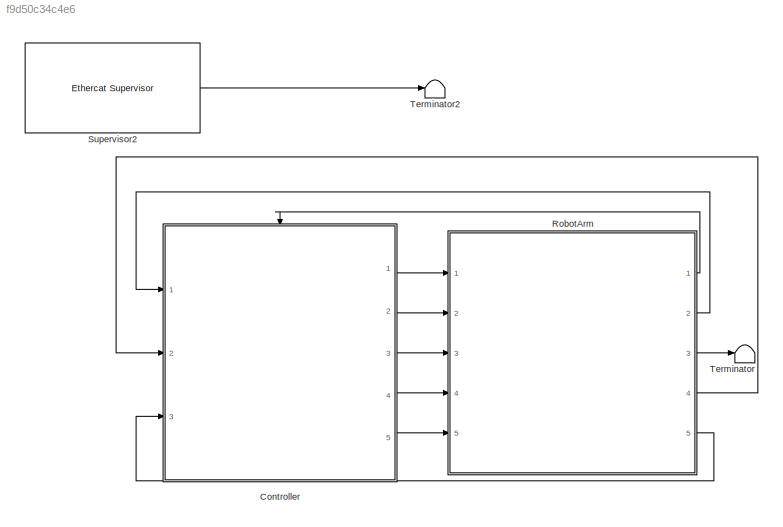
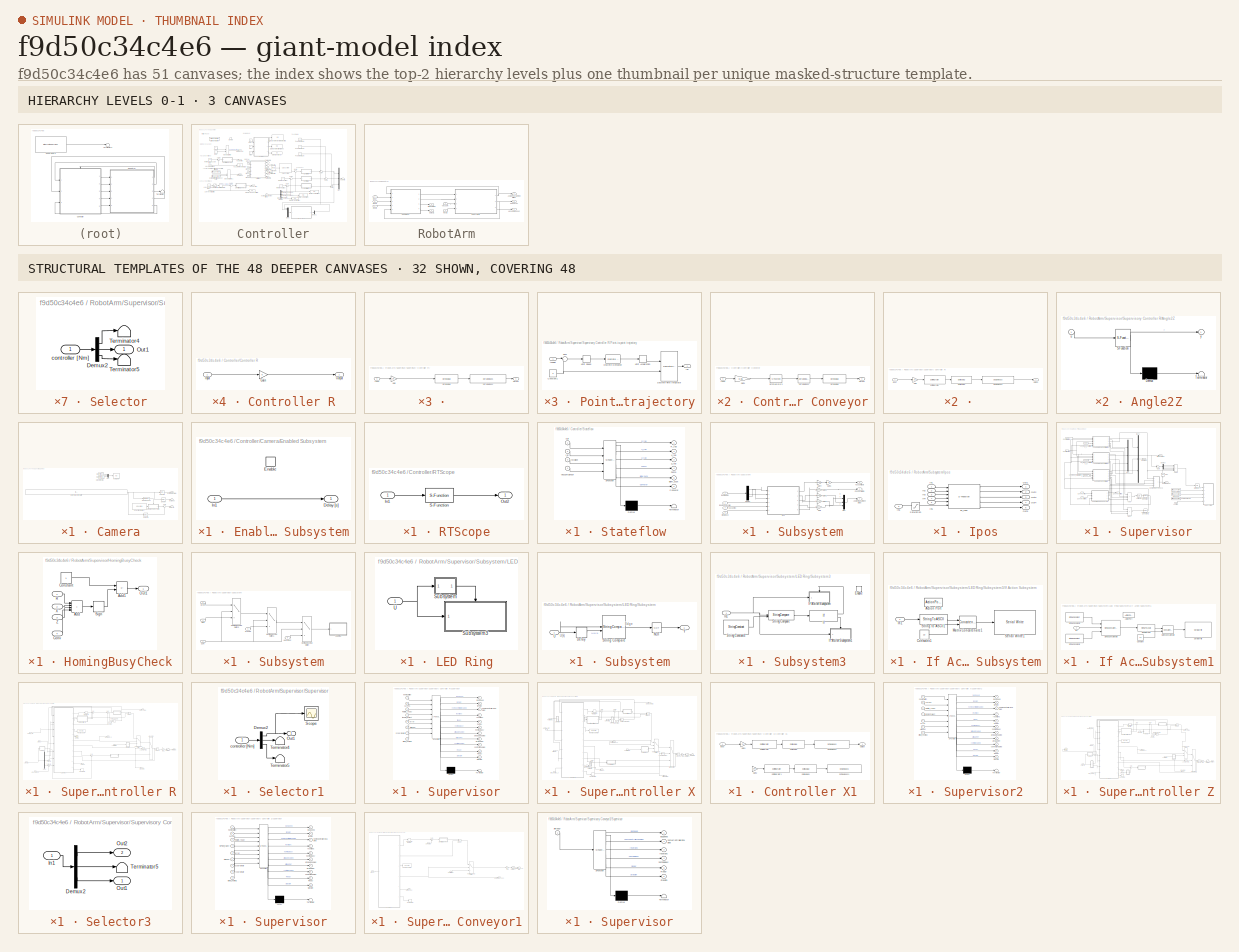
[diagram: thumbnail index - top-2 hierarchy levels (3 canvases) + 32 structural-template representatives of the remaining 48 canvases]
MODEL slx_f9d50c34c4e6
KIND model
CONFIG AbsTol = auto
CONFIG EnableMultiTasking = on
CONFIG FixedStep = Ts
CONFIG InitFcn = Fs = 2048; Ts = 1/Fs;tsim = inf;
CONFIG MaxStep = auto
CONFIG MinStep = auto
CONFIG RelTol = 1e-3
CONFIG SampleTimeConstraint = Unconstrained
CONFIG SolverName = FixedStepDiscrete
CONFIG StartTime = 0.0
CONFIG StopTime = tsim
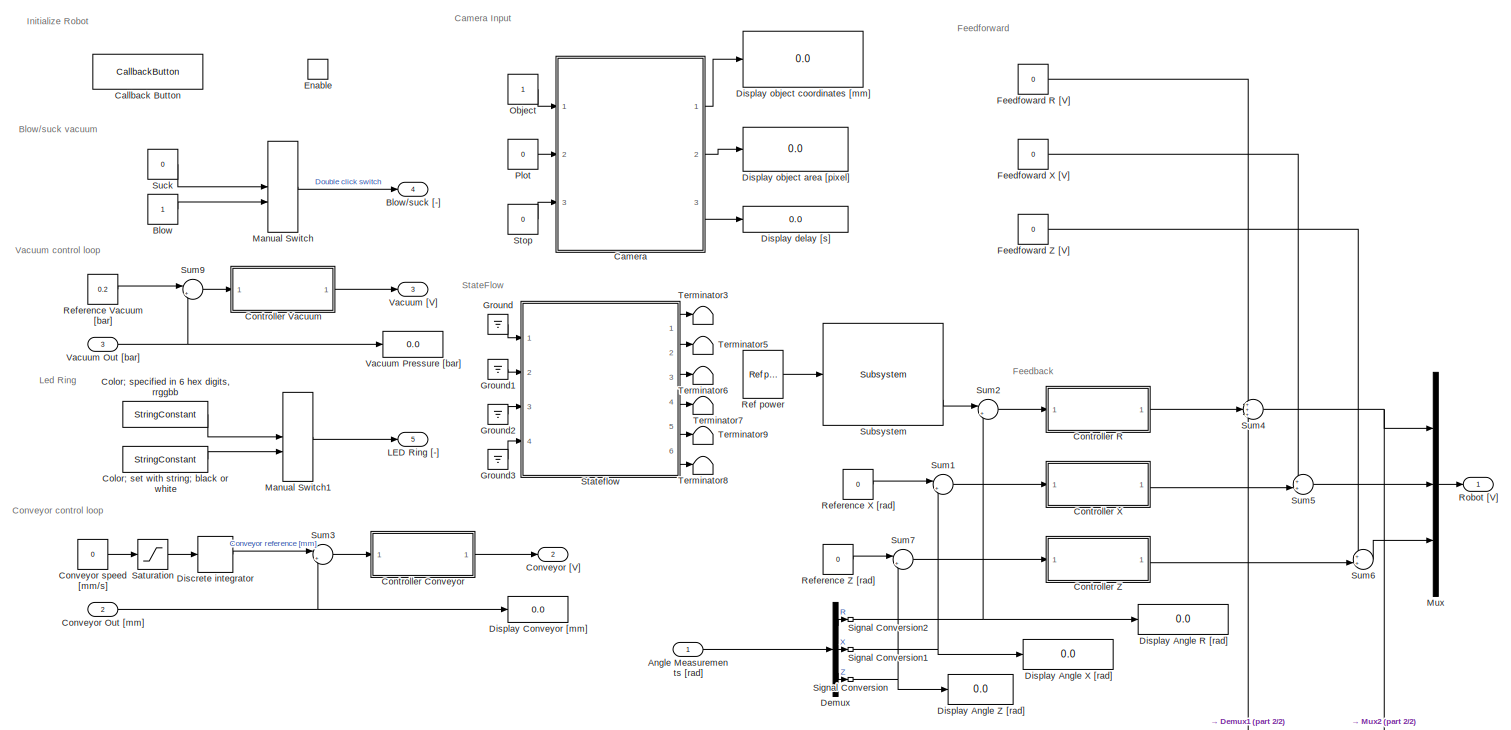
[diagram: Controller - part 1/2, most of the canvas]
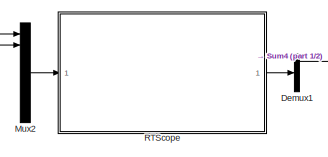
[diagram: Controller - part 2/2, bottom right region]
BLOCK [SubSystem] Controller
  Ports = [3, 5, 1]
  RequestExecContextInheritance = off
BLOCK [Constant] Controller/ Blow
BLOCK [Inport] Controller/Angle Measurements [rad]
BLOCK [Outport] Controller/Blow//suck [-]
  Port = 4
BLOCK [CallbackButton] Controller/Callback Button
  ButtonText = INITIALIZE MODEL
  ClickFcn = robot_number = input('What is your Robot number?: ');\nfile_name_simulink = get_param(bdroot, 'Name');\nload('calibration_matrix.mat');\n[camera_calibration_x_pixels,camera_calibration_y_pixels,camera_calibration_pixels_per_mm,camera_calibration_ROI,robot_calibration_r,robot_calibration_x, robot_calibration_z] = Calibrate_Robot_Settings(robot_number,calibration)\n\nset_param(file_name_simulink+"/RobotA...<+373ch>
BLOCK [SubSystem] Controller/Camera
  Ports = [3, 3]
  RequestExecContextInheritance = off
BLOCK [Outport] Controller/Camera/Area [pixel]
  Port = 2
BLOCK [Outport] Controller/Camera/Coordinates [mm]
BLOCK [Outport] Controller/Camera/Delay [s]
  Port = 3
BLOCK [Reference] Controller/Camera/Detect Change  REF=simulink/Logic and Bit
Operations/Detect
Change
  Ports = [1, 1]
  SourceBlock = simulink/Logic and Bit\nOperations/Detect\nChange
  SourceProductBaseCode = SL
  SourceType = Detect Change
BLOCK [SubSystem] Controller/Camera/Enabled Subsystem
  Ports = [1, 1, 1]
  RequestExecContextInheritance = off
  TreatAsAtomicUnit = on
BLOCK [Outport] Controller/Camera/Enabled Subsystem/Delay [s]
BLOCK [EnablePort] Controller/Camera/Enabled Subsystem/Enable
  Ports = []
BLOCK [Inport] Controller/Camera/Enabled Subsystem/In1
BLOCK [Mux] Controller/Camera/Mux
  DisplayOption = bar
  Inputs = 3
  Ports = [3, 1]
BLOCK [Constant] Controller/Camera/Object detection matrix
  Value = [0                    0                    0      1709314849.7653;0  0  0  0;0  0  0  0]
  VectorParams1D = off
BLOCK [Inport] Controller/Camera/Object input
BLOCK [Inport] Controller/Camera/Plot detection
  Port = 2
BLOCK [S-Function] Controller/Camera/S-Function Builder
  CopyFcn = set_param(gcbh,'LinkStatus','none')
  EnableBusSupport = off
  FunctionName = getSystemClockTimeval
  InitFcn = try, set_param(gcb,'FunctionName','getSystemClockTimeval'), end
  OpenFcn = sfunctionwizard(gcbh)
  Ports = [0, 1]
  PreSaveFcn = try, set_param(gcb,'FunctionName','getSystemClockTimeval'), end
  SFcnIsStateOwnerBlock = off
  SFunctionDeploymentMode = off
  SFunctionModules = getSystemClockTimeval_wrapper
BLOCK [Selector] Controller/Camera/Selector
  IndexOptions = Index vector (dialog),Index vector (dialog)
  Indices = [3],[1:3]
  InputPortWidth = 3
  NumberOfDimensions = 2
  OutputSizes = 1,1
  Ports = [1, 1]
BLOCK [Selector] Controller/Camera/Selector2
  IndexOptions = Select all,Index vector (dialog)
  Indices = 1,[1:3]
  InputPortWidth = 3
  NumberOfDimensions = 2
  OutputSizes = 1,1
  Ports = [1, 1]
BLOCK [Selector] Controller/Camera/Selector3
  IndexOptions = Index vector (dialog),Index vector (dialog)
  Indices = 1,4
  InputPortWidth = 3
  NumberOfDimensions = 2
  OutputSizes = 1,1
  Ports = [1, 1]
BLOCK [Inport] Controller/Camera/Stop detection
  Port = 3
BLOCK [Sum] Controller/Camera/Sum
  Inputs = |+-
  Ports = [2, 1]
BLOCK [Display] Controller/Camera/[color,plot]
  Decimation = 1
  Ports = [1]
BLOCK [StringConstant] Controller/Color; set with string; black or white
  String = 'black'
BLOCK [StringConstant] Controller/Color; specified in 6 hex digits, rrggbb
  String = '0072bd'
BLOCK [SubSystem] Controller/Controller Conveyor
  Ports = [1, 1]
  RequestExecContextInheritance = off
BLOCK [Reference] Controller/Controller Conveyor/Dct1lowpass  REF=sperte_lib/Dct1lowpass  (lib defined in slx_32fa897d258a)
  Ports = [1, 1]
  SourceBlock = sperte_lib/Dct1lowpass
  SourceProductName = SPERTE project library
  SourceType = dctools
BLOCK [S-Function] Controller/Controller Conveyor/Dctintegrator3
  EnableBusSupport = off
  FunctionName = dweakint
  Parameters = f_num, 0.001
  Ports = [1, 1]
  SFcnIsStateOwnerBlock = off
  SFunctionDeploymentMode = off
BLOCK [Reference] Controller/Controller Conveyor/Dctleadlag  REF=sperte_lib/Dctleadlag  (lib defined in slx_32fa897d258a)
  Ports = [1, 1]
  SourceBlock = sperte_lib/Dctleadlag
  SourceProductName = SPERTE project library
  SourceType = dctools
BLOCK [Gain] Controller/Controller Conveyor/Gain1
  Gain = 0.05
BLOCK [Inport] Controller/Controller Conveyor/Input
BLOCK [Outport] Controller/Controller Conveyor/Output
BLOCK [SubSystem] Controller/Controller R
  Ports = [1, 1]
  RequestExecContextInheritance = off
BLOCK [Gain] Controller/Controller R/Gain
  Gain = 5
BLOCK [Inport] Controller/Controller R/Input
BLOCK [Outport] Controller/Controller R/Output
BLOCK [SubSystem] Controller/Controller Vacuum
  Ports = [1, 1]
  RequestExecContextInheritance = off
BLOCK [Gain] Controller/Controller Vacuum/Gain1
  Gain = -100
BLOCK [Inport] Controller/Controller Vacuum/Input
BLOCK [Outport] Controller/Controller Vacuum/Output
BLOCK [SubSystem] Controller/Controller X
  Ports = [1, 1]
  RequestExecContextInheritance = off
BLOCK [Gain] Controller/Controller X/Gain1
BLOCK [Inport] Controller/Controller X/Input
BLOCK [Outport] Controller/Controller X/Output
BLOCK [SubSystem] Controller/Controller Z
  Ports = [1, 1]
  RequestExecContextInheritance = off
BLOCK [Gain] Controller/Controller Z/Gain
BLOCK [Inport] Controller/Controller Z/Input
BLOCK [Outport] Controller/Controller Z/Output
BLOCK [Inport] Controller/Conveyor Out [mm]
  Port = 2
BLOCK [Outport] Controller/Conveyor [V] 
  Port = 2
BLOCK [Constant] Controller/Conveyor speed [mm//s]
  Value = 0
BLOCK [Demux] Controller/Demux
  Outputs = 3
  Ports = [1, 3]
BLOCK [Demux] Controller/Demux1
  Ports = [1, 4]
BLOCK [DiscreteIntegrator] Controller/Discrete integrator
  ICPrevOutput = DiscIntNeverNeededParam
  ICPrevScaledInput = DiscIntNeverNeededParam
  InitialConditionSetting = Auto
  Ports = [1, 1]
  SampleTime = -1
BLOCK [Display] Controller/Display Angle R [rad]
  Decimation = 1
  Ports = [1]
BLOCK [Display] Controller/Display Angle X [rad]
  Decimation = 1
  Ports = [1]
BLOCK [Display] Controller/Display Angle Z [rad]
  Decimation = 1
  Ports = [1]
BLOCK [Display] Controller/Display Conveyor [mm]
  Decimation = 1
  Ports = [1]
BLOCK [Display] Controller/Display delay [s]
  Decimation = 1
  Ports = [1]
BLOCK [Display] Controller/Display object area [pixel]
  Decimation = 1
  Ports = [1]
BLOCK [Display] Controller/Display object coordinates [mm]
  Decimation = 1
  Ports = [1]
BLOCK [EnablePort] Controller/Enable 
  Ports = []
BLOCK [Constant] Controller/Feedfoward R [V]
  Value = 0
BLOCK [Constant] Controller/Feedfoward X [V]
  Value = 0
BLOCK [Constant] Controller/Feedfoward Z [V]
  Value = 0
BLOCK [Ground] Controller/Ground
BLOCK [Ground] Controller/Ground1
BLOCK [Ground] Controller/Ground2
BLOCK [Ground] Controller/Ground3
BLOCK [Outport] Controller/LED Ring [-]
  Port = 5
BLOCK [ManualSwitch] Controller/Manual Switch
BLOCK [ManualSwitch] Controller/Manual Switch1
BLOCK [Mux] Controller/Mux
  DisplayOption = bar
  Inputs = 3
  Ports = [3, 1]
BLOCK [Mux] Controller/Mux2
  DisplayOption = bar
  Inputs = 8
  Ports = [8, 1]
BLOCK [Constant] Controller/Object
BLOCK [Constant] Controller/Plot
  Value = 0
BLOCK [SubSystem] Controller/RTScope
  OpenFcn = rtscope(p.DeviceAddress)
  Ports = [1, 1]
  RequestExecContextInheritance = off
BLOCK [Inport] Controller/RTScope/In1
BLOCK [Outport] Controller/RTScope/Out2
BLOCK [S-Function] Controller/RTScope/S-Function
  EnableBusSupport = off
  FunctionName = sf_rtscope
  Parameters = 0
  Ports = [1, 1]
  SFcnIsStateOwnerBlock = off
  SFunctionDeploymentMode = off
BLOCK [Reference] Controller/Ref power  REF=sperte_lib/Ref power  (lib defined in slx_32fa897d258a)
  Ports = [0, 1]
  SourceBlock = sperte_lib/Ref power
  SourceProductName = SPERTE project library
  SourceType = On/Off Switch
BLOCK [Constant] Controller/Reference Vacuum [bar]
  Value = 0.2
BLOCK [Constant] Controller/Reference X [rad]
  Value = 0
BLOCK [Constant] Controller/Reference Z [rad]
  Value = 0
BLOCK [Outport] Controller/Robot [V]
BLOCK [Saturate] Controller/Saturation 
  LowerLimit = -100
  UpperLimit = 100
BLOCK [SignalConversion] Controller/Signal Conversion
  OverrideOpt = off
BLOCK [SignalConversion] Controller/Signal Conversion1
  OverrideOpt = off
BLOCK [SignalConversion] Controller/Signal Conversion2
  OverrideOpt = off
BLOCK [SubSystem] Controller/Stateflow 
  ErrorFcn = Stateflow.Translate.translate
  PermitHierarchicalResolution = ExplicitOnly
  Ports = [4, 6]
  RequestExecContextInheritance = off
  SFBlockType = Chart
  TreatAsAtomicUnit = on
BLOCK [Demux] Controller/Stateflow / Demux 
  Outputs = 1
  Ports = [1, 1]
BLOCK [S-Function] Controller/Stateflow / SFunction 
  EnableBusSupport = on
  FunctionName = sf_sfun
  PortCounts = [4 7]
  Ports = [4, 7]
  SFcnIsStateOwnerBlock = off
  SFunctionDeploymentMode = off
  Tag = Stateflow S-Function 3
BLOCK [Terminator] Controller/Stateflow / Terminator 
BLOCK [Outport] Controller/Stateflow /Blow_suck
  Port = 5
BLOCK [Outport] Controller/Stateflow /Conveyor
  Port = 6
BLOCK [Outport] Controller/Stateflow /Pump
  Port = 4
BLOCK [Outport] Controller/Stateflow /R_rad
BLOCK [Inport] Controller/Stateflow /VacuumSensor
  Port = 4
BLOCK [Inport] Controller/Stateflow /X_in
BLOCK [Outport] Controller/Stateflow /X_rad
  Port = 2
BLOCK [Inport] Controller/Stateflow /Y_in
  Port = 2
BLOCK [Outport] Controller/Stateflow /Z_rad
  Port = 3
BLOCK [Inport] Controller/Stateflow /nObject
  Port = 3
BLOCK [Constant] Controller/Stop
  Value = 0
BLOCK [Reference] Controller/Subsystem  REF=sperte_lib/Subsystem  (lib defined in slx_32fa897d258a)
  Ports = [1, 3]
  SourceBlock = sperte_lib/Subsystem
  SourceProductName = SPERTE project library
  SourceType = Ref3
BLOCK [Constant] Controller/Suck
  Value = 0
BLOCK [Sum] Controller/Sum1
  Inputs = |+-
  Ports = [2, 1]
BLOCK [Sum] Controller/Sum2
  Inputs = |+-
  Ports = [2, 1]
BLOCK [Sum] Controller/Sum3
  Inputs = |+-
  Ports = [2, 1]
BLOCK [Sum] Controller/Sum4
  InputSameDT = on
  Inputs = +++
  OutDataTypeStr = Inherit: Same as first input
  Ports = [3, 1]
  SaturateOnIntegerOverflow = on
BLOCK [Sum] Controller/Sum5
  InputSameDT = on
  Inputs = ++|
  OutDataTypeStr = Inherit: Same as first input
  Ports = [2, 1]
  SaturateOnIntegerOverflow = on
BLOCK [Sum] Controller/Sum6
  InputSameDT = on
  Inputs = ++|
  OutDataTypeStr = Inherit: Same as first input
  Ports = [2, 1]
  SaturateOnIntegerOverflow = on
BLOCK [Sum] Controller/Sum7
  Inputs = |+-
  Ports = [2, 1]
BLOCK [Sum] Controller/Sum9
  Inputs = |+-
  Ports = [2, 1]
BLOCK [Terminator] Controller/Terminator3
BLOCK [Terminator] Controller/Terminator5
BLOCK [Terminator] Controller/Terminator6
BLOCK [Terminator] Controller/Terminator7
BLOCK [Terminator] Controller/Terminator8
BLOCK [Terminator] Controller/Terminator9
BLOCK [Inport] Controller/Vacuum Out [bar]
  Port = 3
BLOCK [Display] Controller/Vacuum Pressure [bar]
  Decimation = 1
  Ports = [1]
BLOCK [Outport] Controller/Vacuum [V] 
  Port = 3
BLOCK [SubSystem] RobotArm
  Permissions = NoReadOrWrite
  Ports = [5, 5]
  RequestExecContextInheritance = off
BLOCK [Outport] RobotArm/Airbag Status
  Port = 3
BLOCK [Outport] RobotArm/Angle measurements [rad]
  Port = 2
BLOCK [Outport] RobotArm/Conveyer
  Port = 4
BLOCK [Inport] RobotArm/Input
BLOCK [Inport] RobotArm/Input1
  Port = 2
BLOCK [Inport] RobotArm/Input2
  Port = 5
BLOCK [Inport] RobotArm/Input3
  Port = 4
BLOCK [Outport] RobotArm/Output1
BLOCK [SubSystem] RobotArm/Subsystem
  Ports = [4, 3]
  RequestExecContextInheritance = off
BLOCK [Outport] RobotArm/Subsystem/Angle measurments [rad]
BLOCK [Inport] RobotArm/Subsystem/Blow//Suck
  Port = 4
BLOCK [Outport] RobotArm/Subsystem/Conveyer [mm]
  Port = 2
BLOCK [Demux] RobotArm/Subsystem/Demux
  Outputs = 3
  Ports = [1, 3]
BLOCK [Gain] RobotArm/Subsystem/Gain
  Gain = 1/16000*9/150*2*pi
BLOCK [Gain] RobotArm/Subsystem/Gain1
  Gain = 1/16000*9/100*2*pi
BLOCK [Gain] RobotArm/Subsystem/Gain2
  Gain = 1/16000*9/100*2*pi
BLOCK [Gain] RobotArm/Subsystem/Gain3
  Gain = 1/16000*2*pi*2.05*10
BLOCK [Gain] RobotArm/Subsystem/Gain4
  Gain = 1/65535
BLOCK [Gain] RobotArm/Subsystem/Gain5
  Gain = 1/2
BLOCK [Inport] RobotArm/Subsystem/Input R,X,Z (V)
BLOCK [Inport] RobotArm/Subsystem/Input conveyor (V)
  Port = 2
BLOCK [SubSystem] RobotArm/Subsystem/Ipos
  Ports = [6, 5]
  RequestExecContextInheritance = off
BLOCK [Inport] RobotArm/Subsystem/Ipos/In1
BLOCK [Inport] RobotArm/Subsystem/Ipos/In2
  Port = 2
BLOCK [Inport] RobotArm/Subsystem/Ipos/In3
  Port = 3
BLOCK [Inport] RobotArm/Subsystem/Ipos/In4
  Port = 4
BLOCK [Inport] RobotArm/Subsystem/Ipos/In5
  Port = 5
BLOCK [Inport] RobotArm/Subsystem/Ipos/In6
  Port = 6
BLOCK [Outport] RobotArm/Subsystem/Ipos/Out1
BLOCK [Outport] RobotArm/Subsystem/Ipos/Out2
  Port = 2
BLOCK [Outport] RobotArm/Subsystem/Ipos/Out3
  Port = 3
BLOCK [Outport] RobotArm/Subsystem/Ipos/Out4
  Port = 4
BLOCK [Outport] RobotArm/Subsystem/Ipos/Out5
  Port = 5
BLOCK [Saturate] RobotArm/Subsystem/Ipos/Saturation
  LowerLimit = 0
  UpperLimit = 255
BLOCK [S-Function] RobotArm/Subsystem/Ipos/ec_Ipos
  EnableBusSupport = off
  FunctionName = Ipos360
  Parameters = link_id
  Ports = [6, 5]
  SFcnIsStateOwnerBlock = off
  SFunctionDeploymentMode = off
BLOCK [Mux] RobotArm/Subsystem/Mux
  DisplayOption = bar
  Inputs = 3
  Ports = [3, 1]
BLOCK [Inport] RobotArm/Subsystem/Vacuum (V)
  Port = 3
BLOCK [Outport] RobotArm/Subsystem/Vacuum [bar]
  Port = 3
BLOCK [SubSystem] RobotArm/Supervisor
  Ports = [5, 4]
  RequestExecContextInheritance = off
BLOCK [Sum] RobotArm/Supervisor/Add
  IconShape = rectangular
  Inputs = ++++
  Ports = [4, 1]
BLOCK [Sum] RobotArm/Supervisor/Add1
  IconShape = rectangular
  Inputs = +++
  Ports = [3, 1]
BLOCK [Sum] RobotArm/Supervisor/Add2
  IconShape = rectangular
  Inputs = +++++
  Ports = [5, 1]
BLOCK [StringConstant] RobotArm/Supervisor/Airbag Red
  String = '00FF0000'
BLOCK [Outport] RobotArm/Supervisor/Airbag Status
  Port = 3
BLOCK [Reference] RobotArm/Supervisor/Compare To Constant  REF=simulink/Logic and Bit
Operations/Compare
To Constant
  Ports = [1, 1]
  SourceBlock = simulink/Logic and Bit\nOperations/Compare\nTo Constant
  SourceProductBaseCode = SL
  SourceType = Compare To Constant
BLOCK [Reference] RobotArm/Supervisor/Compare To Constant1  REF=simulink/Logic and Bit
Operations/Compare
To Constant
  Ports = [1, 1]
  SourceBlock = simulink/Logic and Bit\nOperations/Compare\nTo Constant
  SourceProductBaseCode = SL
  SourceType = Compare To Constant
BLOCK [Inport] RobotArm/Supervisor/Controller [Nm]
  Port = 2
BLOCK [Outport] RobotArm/Supervisor/Conveyor [Nm]
  Port = 2
BLOCK [Inport] RobotArm/Supervisor/Conveyor [V]
  Port = 3
BLOCK [Inport] RobotArm/Supervisor/Conveyor [mm]
  Port = 5
BLOCK [Demux] RobotArm/Supervisor/Demux
  Outputs = 3
  Ports = [1, 3]
BLOCK [Gain] RobotArm/Supervisor/Gain
  Gain = 3
BLOCK [StringConstant] RobotArm/Supervisor/Homing Orange
  String = '00FF3900'
BLOCK [Outport] RobotArm/Supervisor/HomingBusy
  Port = 4
BLOCK [SubSystem] RobotArm/Supervisor/HomingBusyCheck
  Ports = [4, 1]
  RequestExecContextInheritance = off
BLOCK [Sum] RobotArm/Supervisor/HomingBusyCheck/Add
  IconShape = rectangular
  Inputs = ++++
  Ports = [4, 1]
BLOCK [Sum] RobotArm/Supervisor/HomingBusyCheck/Add1
  IconShape = rectangular
  Inputs = +-
  Ports = [2, 1]
BLOCK [Constant] RobotArm/Supervisor/HomingBusyCheck/Constant
BLOCK [Inport] RobotArm/Supervisor/HomingBusyCheck/Conv
  Port = 4
BLOCK [Outport] RobotArm/Supervisor/HomingBusyCheck/Out1
BLOCK [Inport] RobotArm/Supervisor/HomingBusyCheck/R
BLOCK [Signum] RobotArm/Supervisor/HomingBusyCheck/Sign
BLOCK [Inport] RobotArm/Supervisor/HomingBusyCheck/X
  Port = 2
BLOCK [Inport] RobotArm/Supervisor/HomingBusyCheck/Z
  Port = 3
BLOCK [Inport] RobotArm/Supervisor/Ledring
  Port = 4
BLOCK [Outport] RobotArm/Supervisor/Motor [Nm]
BLOCK [Mux] RobotArm/Supervisor/Mux
  DisplayOption = bar
  Inputs = 3
  Ports = [3, 1]
BLOCK [Mux] RobotArm/Supervisor/Mux1
  DisplayOption = bar
  Inputs = 3
  Ports = [3, 1]
BLOCK [Logic] RobotArm/Supervisor/NOT
  AllPortsSameDT = off
  IconShape = distinctive
  NameLocation = right
  Operator = NOT
  OutDataTypeStr = boolean
  Ports = [1, 1]
BLOCK [Inport] RobotArm/Supervisor/Position [rad]
  NameLocation = top
BLOCK [StringConstant] RobotArm/Supervisor/Ready Green
  String = '0000FF00'
BLOCK [SubSystem] RobotArm/Supervisor/Subsystem
  Ports = [5]
  RequestExecContextInheritance = off
BLOCK [Inport] RobotArm/Supervisor/Subsystem/Green
  Port = 2
BLOCK [Switch] RobotArm/Supervisor/Subsystem/Homing Running Switch
  InputSameDT = off
  SaturateOnIntegerOverflow = off
  Threshold = 0.5
BLOCK [Switch] RobotArm/Supervisor/Subsystem/Homing Running Switch1
  InputSameDT = off
  SaturateOnIntegerOverflow = off
  Threshold = 2.5
BLOCK [Switch] RobotArm/Supervisor/Subsystem/Homing Running Switch2
  InputSameDT = off
  SaturateOnIntegerOverflow = off
  Threshold = 50
BLOCK [SubSystem] RobotArm/Supervisor/Subsystem/LED Ring
  Ports = [1]
  RequestExecContextInheritance = off
BLOCK [SubSystem] RobotArm/Supervisor/Subsystem/LED Ring/Subsystem
  Ports = [1, 1]
  RequestExecContextInheritance = off
BLOCK [Delay] RobotArm/Supervisor/Subsystem/LED Ring/Subsystem/Delay
  DelayLength = 1
  InitialCondition = 0
  InputPortMap = u0
  Ports = [1, 1]
BLOCK [Logic] RobotArm/Supervisor/Subsystem/LED Ring/Subsystem/NOT
  AllPortsSameDT = off
  IconShape = distinctive
  Operator = NOT
  OutDataTypeStr = boolean
  Ports = [1, 1]
BLOCK [StringCompare] RobotArm/Supervisor/Subsystem/LED Ring/Subsystem/String Compare
BLOCK [Inport] RobotArm/Supervisor/Subsystem/LED Ring/Subsystem/U
BLOCK [Outport] RobotArm/Supervisor/Subsystem/LED Ring/Subsystem/Y
  InitialOutput = 0
BLOCK [SubSystem] RobotArm/Supervisor/Subsystem/LED Ring/Subsystem3
  Ports = [1, 0, 1]
  RequestExecContextInheritance = off
BLOCK [EnablePort] RobotArm/Supervisor/Subsystem/LED Ring/Subsystem3/Enable
  Ports = []
BLOCK [If] RobotArm/Supervisor/Subsystem/LED Ring/Subsystem3/If
  IfExpression = u1 == 1
  Ports = [1, 2]
BLOCK [SubSystem] RobotArm/Supervisor/Subsystem/LED Ring/Subsystem3/If Action Subsystem
  Ports = [1, 0, 0, 0, 0, 0, 0, 1]
  RequestExecContextInheritance = off
  TreatAsAtomicUnit = on
BLOCK [ActionPort] RobotArm/Supervisor/Subsystem/LED Ring/Subsystem3/If Action Subsystem/Action Port
  ActionPortLabel = if(u1 == 1)
BLOCK [Constant] RobotArm/Supervisor/Subsystem/LED Ring/Subsystem3/If Action Subsystem/Constant1
  OutDataTypeStr = uint8
  Value = 13
BLOCK [Inport] RobotArm/Supervisor/Subsystem/LED Ring/Subsystem3/If Action Subsystem/In1
BLOCK [Concatenate] RobotArm/Supervisor/Subsystem/LED Ring/Subsystem3/If Action Subsystem/Matrix Concatenate1
  ConcatenateDimension = 2
  Ports = [2, 1]
BLOCK [Reference] RobotArm/Supervisor/Subsystem/LED Ring/Subsystem3/If Action Subsystem/Serial Write1  REF=raspberrypiCommlib/Serial Write
  Ports = [1]
  SourceBlock = raspberrypiCommlib/Serial Write
  SourceProductBaseCode = RASPPI
  SourceType = Serial Write
BLOCK [StringToASCII] RobotArm/Supervisor/Subsystem/LED Ring/Subsystem3/If Action Subsystem/String to ASCII1
BLOCK [SubSystem] RobotArm/Supervisor/Subsystem/LED Ring/Subsystem3/If Action Subsystem1
  Ports = [1, 0, 0, 0, 0, 0, 0, 1]
  RequestExecContextInheritance = off
  TreatAsAtomicUnit = on
BLOCK [ActionPort] RobotArm/Supervisor/Subsystem/LED Ring/Subsystem3/If Action Subsystem1/Action Port
  ActionPortLabel = else
BLOCK [Constant] RobotArm/Supervisor/Subsystem/LED Ring/Subsystem3/If Action Subsystem1/Constant
  OutDataTypeStr = uint8
  Value = 13
BLOCK [Inport] RobotArm/Supervisor/Subsystem/LED Ring/Subsystem3/If Action Subsystem1/In1
BLOCK [Concatenate] RobotArm/Supervisor/Subsystem/LED Ring/Subsystem3/If Action Subsystem1/Matrix Concatenate
  ConcatenateDimension = 2
  Ports = [2, 1]
BLOCK [Reference] RobotArm/Supervisor/Subsystem/LED Ring/Subsystem3/If Action Subsystem1/Serial Write  REF=raspberrypiCommlib/Serial Write
  Ports = [1]
  SourceBlock = raspberrypiCommlib/Serial Write
  SourceProductBaseCode = RASPPI
  SourceType = Serial Write
BLOCK [StringConcatenate] RobotArm/Supervisor/Subsystem/LED Ring/Subsystem3/If Action Subsystem1/String Concatenate
  Inputs = 3
  Ports = [3, 1]
BLOCK [StringConstant] RobotArm/Supervisor/Subsystem/LED Ring/Subsystem3/If Action Subsystem1/String Constant1
  String = ' 0 16'
BLOCK [StringConstant] RobotArm/Supervisor/Subsystem/LED Ring/Subsystem3/If Action Subsystem1/String Constant3
  String = 'color '
BLOCK [StringToASCII] RobotArm/Supervisor/Subsystem/LED Ring/Subsystem3/If Action Subsystem1/String to ASCII
BLOCK [Inport] RobotArm/Supervisor/Subsystem/LED Ring/Subsystem3/In1
BLOCK [StringCompare] RobotArm/Supervisor/Subsystem/LED Ring/Subsystem3/String Compare
BLOCK [StringConstant] RobotArm/Supervisor/Subsystem/LED Ring/Subsystem3/String Constant4
  String = 'white'
BLOCK [Inport] RobotArm/Supervisor/Subsystem/LED Ring/U
BLOCK [Inport] RobotArm/Supervisor/Subsystem/Orange
  Port = 4
BLOCK [Inport] RobotArm/Supervisor/Subsystem/Red
  Port = 3
BLOCK [Inport] RobotArm/Supervisor/Subsystem/Sum
BLOCK [Inport] RobotArm/Supervisor/Subsystem/UserInput
  Port = 5
BLOCK [SubSystem] RobotArm/Supervisor/Supervisory Controller R
  Ports = [5, 5]
  RequestExecContextInheritance = off
BLOCK [SubSystem] RobotArm/Supervisor/Supervisory Controller R/ 
  Ports = [1, 1]
  RequestExecContextInheritance = off
BLOCK [SubSystem] RobotArm/Supervisor/Supervisory Controller R/   
  Ports = [1, 1]
  RequestExecContextInheritance = off
BLOCK [Reference] RobotArm/Supervisor/Supervisory Controller R/   /Dct1lowpass  REF=sperte_lib/Dct1lowpass  (lib defined in slx_32fa897d258a)
  Ports = [1, 1]
  SourceBlock = sperte_lib/Dct1lowpass
  SourceProductName = SPERTE project library
  SourceType = dctools
BLOCK [Reference] RobotArm/Supervisor/Supervisory Controller R/   /Dctleadlag  REF=sperte_lib/Dctleadlag  (lib defined in slx_32fa897d258a)
  Ports = [1, 1]
  SourceBlock = sperte_lib/Dctleadlag
  SourceProductName = SPERTE project library
  SourceType = dctools
BLOCK [Gain] RobotArm/Supervisor/Supervisory Controller R/   /Gain
  Gain = 25
BLOCK [Inport] RobotArm/Supervisor/Supervisory Controller R/   /Input
BLOCK [Outport] RobotArm/Supervisor/Supervisory Controller R/   /Output
BLOCK [Reference] RobotArm/Supervisor/Supervisory Controller R/ /Dct1lowpass  REF=sperte_lib/Dct1lowpass  (lib defined in slx_32fa897d258a)
  Ports = [1, 1]
  SourceBlock = sperte_lib/Dct1lowpass
  SourceProductName = SPERTE project library
  SourceType = dctools
BLOCK [Reference] RobotArm/Supervisor/Supervisory Controller R/ /Dctintegrator  REF=sperte_lib/Dctintegrator  (lib defined in slx_32fa897d258a)
  Ports = [1, 1]
  SourceBlock = sperte_lib/Dctintegrator
  SourceProductName = SPERTE project library
  SourceType = dctools
BLOCK [Reference] RobotArm/Supervisor/Supervisory Controller R/ /Dctleadlag  REF=sperte_lib/Dctleadlag  (lib defined in slx_32fa897d258a)
  Ports = [1, 1]
  SourceBlock = sperte_lib/Dctleadlag
  SourceProductName = SPERTE project library
  SourceType = dctools
BLOCK [Gain] RobotArm/Supervisor/Supervisory Controller R/ /Gain
  Gain = 25
BLOCK [Inport] RobotArm/Supervisor/Supervisory Controller R/ /Input
BLOCK [Outport] RobotArm/Supervisor/Supervisory Controller R/ /Output
BLOCK [Switch] RobotArm/Supervisor/Supervisory Controller R/AirbagSwitch
  InputSameDT = off
  SaturateOnIntegerOverflow = off
  Threshold = 0.5
BLOCK [Inport] RobotArm/Supervisor/Supervisory Controller R/AllReady
  Port = 2
BLOCK [SubSystem] RobotArm/Supervisor/Supervisory Controller R/Angle2Z
  ErrorFcn = Stateflow.Translate.translate
  PermitHierarchicalResolution = ExplicitOnly
  Ports = [1, 1]
  RequestExecContextInheritance = off
  SFBlockType = MATLAB Function
  TreatAsAtomicUnit = on
BLOCK [Demux] RobotArm/Supervisor/Supervisory Controller R/Angle2Z/ Demux 
  Outputs = 1
  Ports = [1, 1]
BLOCK [S-Function] RobotArm/Supervisor/Supervisory Controller R/Angle2Z/ SFunction 
  EnableBusSupport = on
  FunctionName = sf_sfun
  PortCounts = [1 2]
  Ports = [1, 2]
  SFcnIsStateOwnerBlock = off
  SFunctionDeploymentMode = off
  Tag = Stateflow S-Function 11
BLOCK [Terminator] RobotArm/Supervisor/Supervisory Controller R/Angle2Z/ Terminator 
BLOCK [Inport] RobotArm/Supervisor/Supervisory Controller R/Angle2Z/u
BLOCK [Outport] RobotArm/Supervisor/Supervisory Controller R/Angle2Z/y
BLOCK [Outport] RobotArm/Supervisor/Supervisory Controller R/Before_homing
  Port = 5
BLOCK [Constant] RobotArm/Supervisor/Supervisory Controller R/Constant
  Value = -0.05
BLOCK [Demux] RobotArm/Supervisor/Supervisory Controller R/Demux
  Outputs = 3
  Ports = [1, 3]
BLOCK [DiscreteIntegrator] RobotArm/Supervisor/Supervisory Controller R/Discrete-Time Integrator
  ICPrevOutput = DiscIntNeverNeededParam
  ICPrevScaledInput = DiscIntNeverNeededParam
  Ports = [1, 1]
  SampleTime = -1
BLOCK [Gain] RobotArm/Supervisor/Supervisory Controller R/Gain1
  Gain = 32
BLOCK [Switch] RobotArm/Supervisor/Supervisory Controller R/Homing Running Switch
  InputSameDT = off
  SaturateOnIntegerOverflow = off
  Threshold = 0.5
BLOCK [Outport] RobotArm/Supervisor/Supervisory Controller R/HomingBusyR
  Port = 3
BLOCK [Inport] RobotArm/Supervisor/Supervisory Controller R/Homing_start
  Port = 5
BLOCK [Logic] RobotArm/Supervisor/Supervisory Controller R/Logical Operator1
  AllPortsSameDT = off
  Operator = NOT
  OutDataTypeStr = boolean
  Ports = [1, 1]
BLOCK [Outport] RobotArm/Supervisor/Supervisory Controller R/Motor R [Nm]
BLOCK [SubSystem] RobotArm/Supervisor/Supervisory Controller R/Point-to-point trajectory
  Ports = [1, 1]
  RequestExecContextInheritance = off
BLOCK [Constant] RobotArm/Supervisor/Supervisory Controller R/Point-to-point trajectory/Constant1
  Value = 0
BLOCK [Reference] RobotArm/Supervisor/Supervisory Controller R/Point-to-point trajectory/Discrete Derivative  REF=simulink/Discrete/Discrete Derivative
  Ports = [1, 1]
  SourceBlock = simulink/Discrete/Discrete Derivative
  SourceProductBaseCode = SL
  SourceType = Discrete Derivative
BLOCK [DiscreteIntegrator] RobotArm/Supervisor/Supervisory Controller R/Point-to-point trajectory/Discrete-Time Integrator
  ICPrevOutput = DiscIntNeverNeededParam
  ICPrevScaledInput = DiscIntNeverNeededParam
  InitialConditionSource = external
  Ports = [2, 1]
  SampleTime = -1
BLOCK [RateLimiter] RobotArm/Supervisor/Supervisory Controller R/Point-to-point trajectory/Limit Acceleration
  FallingSlewLimit = -0.8
  RisingSlewLimit = 0.8
  SampleTimeMode = inherited
BLOCK [RateLimiter] RobotArm/Supervisor/Supervisory Controller R/Point-to-point trajectory/Limit Speed
  FallingSlewLimit = -0.6
  RisingSlewLimit = 0.6
  SampleTimeMode = inherited
BLOCK [Sum] RobotArm/Supervisor/Supervisory Controller R/Point-to-point trajectory/Sum
  Inputs = |++
  Ports = [2, 1]
BLOCK [Outport] RobotArm/Supervisor/Supervisory Controller R/Point-to-point trajectory/ref
BLOCK [Inport] RobotArm/Supervisor/Supervisory Controller R/Point-to-point trajectory/toPoint
BLOCK [Product] RobotArm/Supervisor/Supervisory Controller R/Product
  Ports = [2, 1]
  RndMeth = Zero
BLOCK [Product] RobotArm/Supervisor/Supervisory Controller R/Product1
  Ports = [2, 1]
  RndMeth = Zero
BLOCK [Outport] RobotArm/Supervisor/Supervisory Controller R/Ready R
  Port = 4
BLOCK [RelationalOperator] RobotArm/Supervisor/Supervisory Controller R/Relational Operator
  InputSameDT = off
  Operator = <=
  OutDataTypeStr = boolean
  Ports = [2, 1]
BLOCK [S-Function] RobotArm/Supervisor/Supervisory Controller R/Reset EncoderR
  EnableBusSupport = off
  FunctionName = ec_IposResetEnc
  Parameters = ipos_id
  Ports = [1]
  SFcnIsStateOwnerBlock = off
  SFunctionDeploymentMode = off
BLOCK [Saturate] RobotArm/Supervisor/Supervisory Controller R/Saturation1
  LowerLimit = -127
  UpperLimit = 127
BLOCK [Scope] RobotArm/Supervisor/Supervisory Controller R/Scope9
  Floating = off
  NumInputPorts = 1
  Ports = [1]
  ScopeSpecificationString = Simulink.scopes.TimeScopeBlockCfg('CurrentConfiguration', extmgr.ConfigurationSet(extmgr.Configuration('Core','General UI',true),extmgr.Configuration('Core','Source UI',true),extmgr.Configuration('Sources','WiredSimulink',true,'DataLoggingVariableName','ScopeData5'),extmgr.Configuration('Visuals','Time Domain',true,'SerializedDisplays',{struct('MinYLimReal','-0.125','MaxYLimReal','1.125','YLabelRe...<+1372ch>
BLOCK [SubSystem] RobotArm/Supervisor/Supervisory Controller R/Selector1
  Ports = [1, 1]
  RequestExecContextInheritance = off
BLOCK [Demux] RobotArm/Supervisor/Supervisory Controller R/Selector1/Demux2
  Outputs = 3
  Ports = [1, 3]
BLOCK [Outport] RobotArm/Supervisor/Supervisory Controller R/Selector1/Out1
BLOCK [Scope] RobotArm/Supervisor/Supervisory Controller R/Selector1/Scope
  Floating = off
  NumInputPorts = 1
  Ports = [1]
  ScopeSpecificationString = Simulink.scopes.TimeScopeBlockCfg('CurrentConfiguration', extmgr.ConfigurationSet(extmgr.Configuration('Core','General UI',true),extmgr.Configuration('Core','Source UI',true),extmgr.Configuration('Sources','WiredSimulink',true,'DataLoggingVariableName','ScopeData6'),extmgr.Configuration('Visuals','Time Domain',true,'SerializedDisplays',{struct('MinYLimReal','-1.00000','MaxYLimReal','1.00000','YLab...<+1367ch>
BLOCK [Terminator] RobotArm/Supervisor/Supervisory Controller R/Selector1/Terminator4
BLOCK [Terminator] RobotArm/Supervisor/Supervisory Controller R/Selector1/Terminator5
BLOCK [Inport] RobotArm/Supervisor/Supervisory Controller R/Selector1/controller [Nm]
BLOCK [Stop] RobotArm/Supervisor/Supervisory Controller R/Stop Simulation
BLOCK [Sum] RobotArm/Supervisor/Supervisory Controller R/Sum
  Inputs = |++
  Ports = [2, 1]
BLOCK [Sum] RobotArm/Supervisor/Supervisory Controller R/Sum1
  Inputs = |+-
  Ports = [2, 1]
BLOCK [Sum] RobotArm/Supervisor/Supervisory Controller R/Sum2
  Inputs = |+-
  Ports = [2, 1]
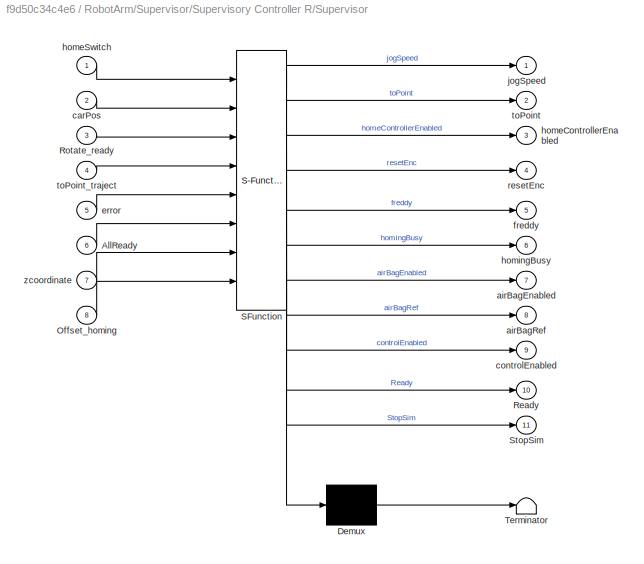
BLOCK [SubSystem] RobotArm/Supervisor/Supervisory Controller R/Supervisor
  ErrorFcn = Stateflow.Translate.translate
  PermitHierarchicalResolution = ExplicitOnly
  Ports = [8, 11]
  RequestExecContextInheritance = off
  SFBlockType = Chart
  TreatAsAtomicUnit = on
BLOCK [Demux] RobotArm/Supervisor/Supervisory Controller R/Supervisor/ Demux 
  Outputs = 1
  Ports = [1, 1]
BLOCK [S-Function] RobotArm/Supervisor/Supervisory Controller R/Supervisor/ SFunction 
  EnableBusSupport = on
  FunctionName = sf_sfun
  PortCounts = [8 12]
  Ports = [8, 12]
  SFcnIsStateOwnerBlock = off
  SFunctionDeploymentMode = off
  Tag = Stateflow S-Function 12
BLOCK [Terminator] RobotArm/Supervisor/Supervisory Controller R/Supervisor/ Terminator 
BLOCK [Inport] RobotArm/Supervisor/Supervisory Controller R/Supervisor/AllReady
  Port = 6
BLOCK [Inport] RobotArm/Supervisor/Supervisory Controller R/Supervisor/Offset_homing
  Port = 8
BLOCK [Outport] RobotArm/Supervisor/Supervisory Controller R/Supervisor/Ready
  Port = 10
BLOCK [Inport] RobotArm/Supervisor/Supervisory Controller R/Supervisor/Rotate_ready
  Port = 3
BLOCK [Outport] RobotArm/Supervisor/Supervisory Controller R/Supervisor/StopSim
  Port = 11
BLOCK [Outport] RobotArm/Supervisor/Supervisory Controller R/Supervisor/airBagEnabled
  Port = 7
BLOCK [Outport] RobotArm/Supervisor/Supervisory Controller R/Supervisor/airBagRef
  Port = 8
BLOCK [Inport] RobotArm/Supervisor/Supervisory Controller R/Supervisor/carPos
  Port = 2
BLOCK [Outport] RobotArm/Supervisor/Supervisory Controller R/Supervisor/controlEnabled
  Port = 9
BLOCK [Inport] RobotArm/Supervisor/Supervisory Controller R/Supervisor/error
  Port = 5
BLOCK [Outport] RobotArm/Supervisor/Supervisory Controller R/Supervisor/freddy
  Port = 5
BLOCK [Outport] RobotArm/Supervisor/Supervisory Controller R/Supervisor/homeControllerEnabled
  Port = 3
BLOCK [Inport] RobotArm/Supervisor/Supervisory Controller R/Supervisor/homeSwitch
BLOCK [Outport] RobotArm/Supervisor/Supervisory Controller R/Supervisor/homingBusy
  Port = 6
BLOCK [Outport] RobotArm/Supervisor/Supervisory Controller R/Supervisor/jogSpeed
BLOCK [Outport] RobotArm/Supervisor/Supervisory Controller R/Supervisor/resetEnc
  Port = 4
BLOCK [Outport] RobotArm/Supervisor/Supervisory Controller R/Supervisor/toPoint
  Port = 2
BLOCK [Inport] RobotArm/Supervisor/Supervisory Controller R/Supervisor/toPoint_traject
  Port = 4
BLOCK [Inport] RobotArm/Supervisor/Supervisory Controller R/Supervisor/zcoordinate
  Port = 7
BLOCK [Terminator] RobotArm/Supervisor/Supervisory Controller R/Terminator1
BLOCK [Terminator] RobotArm/Supervisor/Supervisory Controller R/Terminator2
BLOCK [Outport] RobotArm/Supervisor/Supervisory Controller R/airbagStatus
  Port = 2
BLOCK [Inport] RobotArm/Supervisor/Supervisory Controller R/carPos [m]
  Port = 3
BLOCK [Inport] RobotArm/Supervisor/Supervisory Controller R/controller [Nm]
BLOCK [Inport] RobotArm/Supervisor/Supervisory Controller R/offset_homing_R
  Port = 4
BLOCK [SubSystem] RobotArm/Supervisor/Supervisory Controller X
  Ports = [5, 5]
  RequestExecContextInheritance = off
BLOCK [Switch] RobotArm/Supervisor/Supervisory Controller X/AirbagSwitch
  InputSameDT = off
  SaturateOnIntegerOverflow = off
  Threshold = 0.5
BLOCK [Inport] RobotArm/Supervisor/Supervisory Controller X/AllReady
  Port = 3
BLOCK [Outport] RobotArm/Supervisor/Supervisory Controller X/Before_homing
  Port = 5
BLOCK [Constant] RobotArm/Supervisor/Supervisory Controller X/Constant
  Value = -0.1
BLOCK [SubSystem] RobotArm/Supervisor/Supervisory Controller X/Controller X1
  Ports = [1, 1]
  RequestExecContextInheritance = off
BLOCK [Reference] RobotArm/Supervisor/Supervisory Controller X/Controller X1/Dct1lowpass  REF=sperte_lib/Dct1lowpass  (lib defined in slx_32fa897d258a)
  Ports = [1, 1]
  SourceBlock = sperte_lib/Dct1lowpass
  SourceProductName = SPERTE project library
  SourceType = dctools
BLOCK [Reference] RobotArm/Supervisor/Supervisory Controller X/Controller X1/Dct1lowpass1  REF=sperte_lib/Dct1lowpass  (lib defined in slx_32fa897d258a)
  Commented = on
  Ports = [1, 1]
  SourceBlock = sperte_lib/Dct1lowpass
  SourceProductName = SPERTE project library
  SourceType = dctools
BLOCK [Reference] RobotArm/Supervisor/Supervisory Controller X/Controller X1/Dctintegrator  REF=sperte_lib/Dctintegrator  (lib defined in slx_32fa897d258a)
  Ports = [1, 1]
  SourceBlock = sperte_lib/Dctintegrator
  SourceProductName = SPERTE project library
  SourceType = dctools
BLOCK [Reference] RobotArm/Supervisor/Supervisory Controller X/Controller X1/Dctintegrator1  REF=sperte_lib/Dctintegrator  (lib defined in slx_32fa897d258a)
  Commented = on
  Ports = [1, 1]
  SourceBlock = sperte_lib/Dctintegrator
  SourceProductName = SPERTE project library
  SourceType = dctools
BLOCK [Reference] RobotArm/Supervisor/Supervisory Controller X/Controller X1/Dctleadlag  REF=sperte_lib/Dctleadlag  (lib defined in slx_32fa897d258a)
  Ports = [1, 1]
  SourceBlock = sperte_lib/Dctleadlag
  SourceProductName = SPERTE project library
  SourceType = dctools
BLOCK [Reference] RobotArm/Supervisor/Supervisory Controller X/Controller X1/Dctleadlag1  REF=sperte_lib/Dctleadlag  (lib defined in slx_32fa897d258a)
  Commented = on
  Ports = [1, 1]
  SourceBlock = sperte_lib/Dctleadlag
  SourceProductName = SPERTE project library
  SourceType = dctools
BLOCK [Gain] RobotArm/Supervisor/Supervisory Controller X/Controller X1/Gain1
  Gain = 20
BLOCK [Gain] RobotArm/Supervisor/Supervisory Controller X/Controller X1/Gain2
  Commented = on
  Gain = 200
BLOCK [Inport] RobotArm/Supervisor/Supervisory Controller X/Controller X1/Input
BLOCK [Outport] RobotArm/Supervisor/Supervisory Controller X/Controller X1/Output
BLOCK [SubSystem] RobotArm/Supervisor/Supervisory Controller X/Controller X2
  Ports = [1, 1]
  RequestExecContextInheritance = off
BLOCK [Reference] RobotArm/Supervisor/Supervisory Controller X/Controller X2/Dct1lowpass  REF=sperte_lib/Dct1lowpass  (lib defined in slx_32fa897d258a)
  Ports = [1, 1]
  SourceBlock = sperte_lib/Dct1lowpass
  SourceProductName = SPERTE project library
  SourceType = dctools
BLOCK [Reference] RobotArm/Supervisor/Supervisory Controller X/Controller X2/Dctleadlag  REF=sperte_lib/Dctleadlag  (lib defined in slx_32fa897d258a)
  Ports = [1, 1]
  SourceBlock = sperte_lib/Dctleadlag
  SourceProductName = SPERTE project library
  SourceType = dctools
BLOCK [Gain] RobotArm/Supervisor/Supervisory Controller X/Controller X2/Gain1
  Gain = 20
BLOCK [Inport] RobotArm/Supervisor/Supervisory Controller X/Controller X2/Input
BLOCK [Outport] RobotArm/Supervisor/Supervisory Controller X/Controller X2/Output
BLOCK [DiscreteIntegrator] RobotArm/Supervisor/Supervisory Controller X/Discrete-Time Integrator
  ICPrevOutput = DiscIntNeverNeededParam
  ICPrevScaledInput = DiscIntNeverNeededParam
  Ports = [1, 1]
  SampleTime = -1
BLOCK [Gain] RobotArm/Supervisor/Supervisory Controller X/Gain
  Gain = 32
BLOCK [Switch] RobotArm/Supervisor/Supervisory Controller X/Homing Running Switch
  InputSameDT = off
  SaturateOnIntegerOverflow = off
  Threshold = 0.5
BLOCK [Outport] RobotArm/Supervisor/Supervisory Controller X/HomingBusyX
  Port = 3
BLOCK [Inport] RobotArm/Supervisor/Supervisory Controller X/Homing_start
  Port = 5
BLOCK [Logic] RobotArm/Supervisor/Supervisory Controller X/Logical Operator1
  AllPortsSameDT = off
  Operator = NOT
  OutDataTypeStr = boolean
  Ports = [1, 1]
BLOCK [Outport] RobotArm/Supervisor/Supervisory Controller X/Motor X [Nm]
BLOCK [SubSystem] RobotArm/Supervisor/Supervisory Controller X/Point-to-point trajectory
  Ports = [1, 1]
  RequestExecContextInheritance = off
BLOCK [Constant] RobotArm/Supervisor/Supervisory Controller X/Point-to-point trajectory/Constant1
  Value = 0
BLOCK [Reference] RobotArm/Supervisor/Supervisory Controller X/Point-to-point trajectory/Discrete Derivative  REF=simulink/Discrete/Discrete Derivative
  Ports = [1, 1]
  SourceBlock = simulink/Discrete/Discrete Derivative
  SourceProductBaseCode = SL
  SourceType = Discrete Derivative
BLOCK [DiscreteIntegrator] RobotArm/Supervisor/Supervisory Controller X/Point-to-point trajectory/Discrete-Time Integrator
  ICPrevOutput = DiscIntNeverNeededParam
  ICPrevScaledInput = DiscIntNeverNeededParam
  InitialConditionSource = external
  Ports = [2, 1]
  SampleTime = -1
BLOCK [RateLimiter] RobotArm/Supervisor/Supervisory Controller X/Point-to-point trajectory/Limit Acceleration
  FallingSlewLimit = -0.5
  RisingSlewLimit = 0.5
  SampleTimeMode = inherited
BLOCK [RateLimiter] RobotArm/Supervisor/Supervisory Controller X/Point-to-point trajectory/Limit Speed
  FallingSlewLimit = -0.4
  RisingSlewLimit = 0.4
  SampleTimeMode = inherited
BLOCK [Sum] RobotArm/Supervisor/Supervisory Controller X/Point-to-point trajectory/Sum
  Inputs = |++
  Ports = [2, 1]
BLOCK [Outport] RobotArm/Supervisor/Supervisory Controller X/Point-to-point trajectory/ref
BLOCK [Inport] RobotArm/Supervisor/Supervisory Controller X/Point-to-point trajectory/toPoint
BLOCK [InportShadow] RobotArm/Supervisor/Supervisory Controller X/Position [m]
  Port = 2
BLOCK [Product] RobotArm/Supervisor/Supervisory Controller X/Product
  Ports = [2, 1]
  RndMeth = Zero
BLOCK [Product] RobotArm/Supervisor/Supervisory Controller X/Product1
  Ports = [2, 1]
  RndMeth = Zero
BLOCK [Outport] RobotArm/Supervisor/Supervisory Controller X/Ready X
  Port = 4
BLOCK [RelationalOperator] RobotArm/Supervisor/Supervisory Controller X/Relational Operator
  InputSameDT = off
  Operator = <=
  OutDataTypeStr = boolean
  Ports = [2, 1]
BLOCK [S-Function] RobotArm/Supervisor/Supervisory Controller X/Reset EncoderR1
  EnableBusSupport = off
  FunctionName = ec_IposResetEnc
  Parameters = ipos_id
  Ports = [1]
  SFcnIsStateOwnerBlock = off
  SFunctionDeploymentMode = off
BLOCK [Saturate] RobotArm/Supervisor/Supervisory Controller X/Saturation1
  LowerLimit = -127
  UpperLimit = 127
BLOCK [SubSystem] RobotArm/Supervisor/Supervisory Controller X/Selector
  Ports = [1, 1]
  RequestExecContextInheritance = off
BLOCK [Demux] RobotArm/Supervisor/Supervisory Controller X/Selector/Demux2
  Outputs = 3
  Ports = [1, 3]
BLOCK [Outport] RobotArm/Supervisor/Supervisory Controller X/Selector/Out1
BLOCK [Terminator] RobotArm/Supervisor/Supervisory Controller X/Selector/Terminator4
BLOCK [Terminator] RobotArm/Supervisor/Supervisory Controller X/Selector/Terminator5
BLOCK [Inport] RobotArm/Supervisor/Supervisory Controller X/Selector/controller [Nm]
BLOCK [SubSystem] RobotArm/Supervisor/Supervisory Controller X/Selector1
  Ports = [1, 1]
  RequestExecContextInheritance = off
BLOCK [Demux] RobotArm/Supervisor/Supervisory Controller X/Selector1/Demux2
  Outputs = 3
  Ports = [1, 3]
BLOCK [Inport] RobotArm/Supervisor/Supervisory Controller X/Selector1/In1
BLOCK [Outport] RobotArm/Supervisor/Supervisory Controller X/Selector1/Out1
BLOCK [Terminator] RobotArm/Supervisor/Supervisory Controller X/Selector1/Terminator4
BLOCK [Terminator] RobotArm/Supervisor/Supervisory Controller X/Selector1/Terminator5
BLOCK [SubSystem] RobotArm/Supervisor/Supervisory Controller X/Selector2
  Ports = [1, 1]
  RequestExecContextInheritance = off
BLOCK [Demux] RobotArm/Supervisor/Supervisory Controller X/Selector2/Demux2
  Outputs = 3
  Ports = [1, 3]
BLOCK [Inport] RobotArm/Supervisor/Supervisory Controller X/Selector2/In1
BLOCK [Outport] RobotArm/Supervisor/Supervisory Controller X/Selector2/Out1
BLOCK [Terminator] RobotArm/Supervisor/Supervisory Controller X/Selector2/Terminator4
BLOCK [Terminator] RobotArm/Supervisor/Supervisory Controller X/Selector2/Terminator5
BLOCK [SubSystem] RobotArm/Supervisor/Supervisory Controller X/Selector3
  Ports = [1, 1]
  RequestExecContextInheritance = off
BLOCK [Demux] RobotArm/Supervisor/Supervisory Controller X/Selector3/Demux2
  Outputs = 3
  Ports = [1, 3]
BLOCK [Inport] RobotArm/Supervisor/Supervisory Controller X/Selector3/In1
BLOCK [Terminator] RobotArm/Supervisor/Supervisory Controller X/Selector3/Terminator4
BLOCK [Terminator] RobotArm/Supervisor/Supervisory Controller X/Selector3/Terminator5
BLOCK [Outport] RobotArm/Supervisor/Supervisory Controller X/Selector3/carPos
BLOCK [Stop] RobotArm/Supervisor/Supervisory Controller X/Stop Simulation
BLOCK [Sum] RobotArm/Supervisor/Supervisory Controller X/Sum
  Inputs = |++
  Ports = [2, 1]
BLOCK [Sum] RobotArm/Supervisor/Supervisory Controller X/Sum1
  Inputs = |+-
  Ports = [2, 1]
BLOCK [Sum] RobotArm/Supervisor/Supervisory Controller X/Sum2
  Inputs = |+-
  Ports = [2, 1]
BLOCK [SubSystem] RobotArm/Supervisor/Supervisory Controller X/Supervisor2
  ErrorFcn = Stateflow.Translate.translate
  PermitHierarchicalResolution = ExplicitOnly
  Ports = [7, 11]
  RequestExecContextInheritance = off
  SFBlockType = Chart
  TreatAsAtomicUnit = on
BLOCK [Demux] RobotArm/Supervisor/Supervisory Controller X/Supervisor2/ Demux 
  Outputs = 1
  Ports = [1, 1]
BLOCK [S-Function] RobotArm/Supervisor/Supervisory Controller X/Supervisor2/ SFunction 
  EnableBusSupport = on
  FunctionName = sf_sfun
  PortCounts = [7 12]
  Ports = [7, 12]
  SFcnIsStateOwnerBlock = off
  SFunctionDeploymentMode = off
  Tag = Stateflow S-Function 16
BLOCK [Terminator] RobotArm/Supervisor/Supervisory Controller X/Supervisor2/ Terminator 
BLOCK [Inport] RobotArm/Supervisor/Supervisory Controller X/Supervisor2/AllReady
  Port = 6
BLOCK [Inport] RobotArm/Supervisor/Supervisory Controller X/Supervisor2/Offset_homing
  Port = 7
BLOCK [Outport] RobotArm/Supervisor/Supervisory Controller X/Supervisor2/Ready
  Port = 10
BLOCK [Inport] RobotArm/Supervisor/Supervisory Controller X/Supervisor2/Rotate_ready
  Port = 3
BLOCK [Outport] RobotArm/Supervisor/Supervisory Controller X/Supervisor2/StopSim
  Port = 11
BLOCK [Outport] RobotArm/Supervisor/Supervisory Controller X/Supervisor2/airBagEnabled
  Port = 7
BLOCK [Outport] RobotArm/Supervisor/Supervisory Controller X/Supervisor2/airBagRef
  Port = 8
BLOCK [Inport] RobotArm/Supervisor/Supervisory Controller X/Supervisor2/carPos
  Port = 2
BLOCK [Outport] RobotArm/Supervisor/Supervisory Controller X/Supervisor2/controlEnabled
  Port = 9
BLOCK [Inport] RobotArm/Supervisor/Supervisory Controller X/Supervisor2/error
  Port = 5
BLOCK [Outport] RobotArm/Supervisor/Supervisory Controller X/Supervisor2/freddy
  Port = 5
BLOCK [Outport] RobotArm/Supervisor/Supervisory Controller X/Supervisor2/homeControllerEnabled
  Port = 3
BLOCK [Inport] RobotArm/Supervisor/Supervisory Controller X/Supervisor2/homeSwitch
BLOCK [Outport] RobotArm/Supervisor/Supervisory Controller X/Supervisor2/homingBusy
  Port = 6
BLOCK [Outport] RobotArm/Supervisor/Supervisory Controller X/Supervisor2/jogSpeed
BLOCK [Outport] RobotArm/Supervisor/Supervisory Controller X/Supervisor2/resetEnc
  Port = 4
BLOCK [Outport] RobotArm/Supervisor/Supervisory Controller X/Supervisor2/toPoint
  Port = 2
BLOCK [Inport] RobotArm/Supervisor/Supervisory Controller X/Supervisor2/toPoint_traject
  Port = 4
BLOCK [Outport] RobotArm/Supervisor/Supervisory Controller X/airbagStatus
  Port = 2
BLOCK [Inport] RobotArm/Supervisor/Supervisory Controller X/carPos [m]
  Port = 2
BLOCK [InportShadow] RobotArm/Supervisor/Supervisory Controller X/carPos [m]3
  Port = 2
BLOCK [Inport] RobotArm/Supervisor/Supervisory Controller X/controller [Nm]
BLOCK [Inport] RobotArm/Supervisor/Supervisory Controller X/offset_homing_X
  Port = 4
BLOCK [SubSystem] RobotArm/Supervisor/Supervisory Controller Z
  Ports = [5, 5]
  RequestExecContextInheritance = off
BLOCK [SubSystem] RobotArm/Supervisor/Supervisory Controller Z/    
  Ports = [1, 1]
  RequestExecContextInheritance = off
BLOCK [SubSystem] RobotArm/Supervisor/Supervisory Controller Z/     
  Ports = [1, 1]
  RequestExecContextInheritance = off
BLOCK [Reference] RobotArm/Supervisor/Supervisory Controller Z/     /Dct1lowpass  REF=sperte_lib/Dct1lowpass  (lib defined in slx_32fa897d258a)
  Ports = [1, 1]
  SourceBlock = sperte_lib/Dct1lowpass
  SourceProductName = SPERTE project library
  SourceType = dctools
BLOCK [Reference] RobotArm/Supervisor/Supervisory Controller Z/     /Dctleadlag  REF=sperte_lib/Dctleadlag  (lib defined in slx_32fa897d258a)
  Ports = [1, 1]
  SourceBlock = sperte_lib/Dctleadlag
  SourceProductName = SPERTE project library
  SourceType = dctools
BLOCK [Gain] RobotArm/Supervisor/Supervisory Controller Z/     /Gain
  Gain = 30
BLOCK [Inport] RobotArm/Supervisor/Supervisory Controller Z/     /Input
BLOCK [Outport] RobotArm/Supervisor/Supervisory Controller Z/     /Output
BLOCK [Reference] RobotArm/Supervisor/Supervisory Controller Z/    /Dct1lowpass  REF=sperte_lib/Dct1lowpass  (lib defined in slx_32fa897d258a)
  Ports = [1, 1]
  SourceBlock = sperte_lib/Dct1lowpass
  SourceProductName = SPERTE project library
  SourceType = dctools
BLOCK [Reference] RobotArm/Supervisor/Supervisory Controller Z/    /Dctintegrator  REF=sperte_lib/Dctintegrator  (lib defined in slx_32fa897d258a)
  Ports = [1, 1]
  SourceBlock = sperte_lib/Dctintegrator
  SourceProductName = SPERTE project library
  SourceType = dctools
BLOCK [Reference] RobotArm/Supervisor/Supervisory Controller Z/    /Dctleadlag  REF=sperte_lib/Dctleadlag  (lib defined in slx_32fa897d258a)
  Ports = [1, 1]
  SourceBlock = sperte_lib/Dctleadlag
  SourceProductName = SPERTE project library
  SourceType = dctools
BLOCK [Gain] RobotArm/Supervisor/Supervisory Controller Z/    /Gain
  Gain = 20
BLOCK [Inport] RobotArm/Supervisor/Supervisory Controller Z/    /Input
BLOCK [Outport] RobotArm/Supervisor/Supervisory Controller Z/    /Output
BLOCK [Switch] RobotArm/Supervisor/Supervisory Controller Z/AirbagSwitch
  InputSameDT = off
  SaturateOnIntegerOverflow = off
  Threshold = 0.5
BLOCK [Inport] RobotArm/Supervisor/Supervisory Controller Z/AllReady
  Port = 3
BLOCK [SubSystem] RobotArm/Supervisor/Supervisory Controller Z/Angle2Z
  ErrorFcn = Stateflow.Translate.translate
  PermitHierarchicalResolution = ExplicitOnly
  Ports = [1, 1]
  RequestExecContextInheritance = off
  SFBlockType = MATLAB Function
  TreatAsAtomicUnit = on
BLOCK [Demux] RobotArm/Supervisor/Supervisory Controller Z/Angle2Z/ Demux 
  Outputs = 1
  Ports = [1, 1]
BLOCK [S-Function] RobotArm/Supervisor/Supervisory Controller Z/Angle2Z/ SFunction 
  EnableBusSupport = on
  FunctionName = sf_sfun
  PortCounts = [1 2]
  Ports = [1, 2]
  SFcnIsStateOwnerBlock = off
  SFunctionDeploymentMode = off
  Tag = Stateflow S-Function 17
BLOCK [Terminator] RobotArm/Supervisor/Supervisory Controller Z/Angle2Z/ Terminator 
BLOCK [Inport] RobotArm/Supervisor/Supervisory Controller Z/Angle2Z/u
BLOCK [Outport] RobotArm/Supervisor/Supervisory Controller Z/Angle2Z/y
BLOCK [Outport] RobotArm/Supervisor/Supervisory Controller Z/Before_homing
  Port = 5
BLOCK [Constant] RobotArm/Supervisor/Supervisory Controller Z/Constant
  Value = 0.05
BLOCK [DiscreteIntegrator] RobotArm/Supervisor/Supervisory Controller Z/Discrete-Time Integrator
  ICPrevOutput = DiscIntNeverNeededParam
  ICPrevScaledInput = DiscIntNeverNeededParam
  Ports = [1, 1]
  SampleTime = -1
BLOCK [Gain] RobotArm/Supervisor/Supervisory Controller Z/Gain
  Gain = 32
BLOCK [Switch] RobotArm/Supervisor/Supervisory Controller Z/Homing Running Switch
  InputSameDT = off
  SaturateOnIntegerOverflow = off
  Threshold = 0.5
BLOCK [Outport] RobotArm/Supervisor/Supervisory Controller Z/HomingBusyZ
  Port = 3
BLOCK [Inport] RobotArm/Supervisor/Supervisory Controller Z/Homing_start
  Port = 5
BLOCK [Logic] RobotArm/Supervisor/Supervisory Controller Z/Logical Operator1
  AllPortsSameDT = off
  Operator = NOT
  OutDataTypeStr = boolean
  Ports = [1, 1]
BLOCK [Outport] RobotArm/Supervisor/Supervisory Controller Z/Motor [Nm]
BLOCK [SubSystem] RobotArm/Supervisor/Supervisory Controller Z/Point-to-point trajectory
  Ports = [1, 1]
  RequestExecContextInheritance = off
BLOCK [Constant] RobotArm/Supervisor/Supervisory Controller Z/Point-to-point trajectory/Constant1
  Value = 0
BLOCK [Reference] RobotArm/Supervisor/Supervisory Controller Z/Point-to-point trajectory/Discrete Derivative  REF=simulink/Discrete/Discrete Derivative
  Ports = [1, 1]
  SourceBlock = simulink/Discrete/Discrete Derivative
  SourceProductBaseCode = SL
  SourceType = Discrete Derivative
BLOCK [DiscreteIntegrator] RobotArm/Supervisor/Supervisory Controller Z/Point-to-point trajectory/Discrete-Time Integrator
  ICPrevOutput = DiscIntNeverNeededParam
  ICPrevScaledInput = DiscIntNeverNeededParam
  InitialConditionSource = external
  Ports = [2, 1]
  SampleTime = -1
BLOCK [RateLimiter] RobotArm/Supervisor/Supervisory Controller Z/Point-to-point trajectory/Limit Acceleration
  FallingSlewLimit = -0.5
  RisingSlewLimit = 0.5
  SampleTimeMode = inherited
BLOCK [RateLimiter] RobotArm/Supervisor/Supervisory Controller Z/Point-to-point trajectory/Limit Speed
  FallingSlewLimit = -0.2
  RisingSlewLimit = 0.2
  SampleTimeMode = inherited
BLOCK [Sum] RobotArm/Supervisor/Supervisory Controller Z/Point-to-point trajectory/Sum
  Inputs = |++
  Ports = [2, 1]
BLOCK [Outport] RobotArm/Supervisor/Supervisory Controller Z/Point-to-point trajectory/ref
BLOCK [Inport] RobotArm/Supervisor/Supervisory Controller Z/Point-to-point trajectory/toPoint
BLOCK [InportShadow] RobotArm/Supervisor/Supervisory Controller Z/Position [m]
  Port = 2
BLOCK [Product] RobotArm/Supervisor/Supervisory Controller Z/Product
  Ports = [2, 1]
  RndMeth = Zero
BLOCK [Product] RobotArm/Supervisor/Supervisory Controller Z/Product1
  Ports = [2, 1]
  RndMeth = Zero
BLOCK [Outport] RobotArm/Supervisor/Supervisory Controller Z/Ready Z
  Port = 4
BLOCK [RelationalOperator] RobotArm/Supervisor/Supervisory Controller Z/Relational Operator
  InputSameDT = off
  OutDataTypeStr = boolean
  Ports = [2, 1]
BLOCK [S-Function] RobotArm/Supervisor/Supervisory Controller Z/Reset EncoderR1
  EnableBusSupport = off
  FunctionName = ec_IposResetEnc
  Parameters = ipos_id
  Ports = [1]
  SFcnIsStateOwnerBlock = off
  SFunctionDeploymentMode = off
BLOCK [Saturate] RobotArm/Supervisor/Supervisory Controller Z/Saturation1
  LowerLimit = -127
  UpperLimit = 127
BLOCK [Scope] RobotArm/Supervisor/Supervisory Controller Z/Scope
  Floating = off
  NumInputPorts = 1
  Ports = [1]
  ScopeSpecificationString = Simulink.scopes.TimeScopeBlockCfg('CurrentConfiguration', extmgr.ConfigurationSet(extmgr.Configuration('Core','General UI',true),extmgr.Configuration('Core','Source UI',true),extmgr.Configuration('Sources','WiredSimulink',true,'DataLoggingVariableName','ScopeData1'),extmgr.Configuration('Visuals','Time Domain',true,'SerializedDisplays',{struct('MinYLimReal','0.08684','MaxYLimReal','0.15726','YLabe...<+1389ch>
BLOCK [SubSystem] RobotArm/Supervisor/Supervisory Controller Z/Selector
  Ports = [1, 1]
  RequestExecContextInheritance = off
BLOCK [Demux] RobotArm/Supervisor/Supervisory Controller Z/Selector/Demux2
  Outputs = 3
  Ports = [1, 3]
BLOCK [Inport] RobotArm/Supervisor/Supervisory Controller Z/Selector/In1
BLOCK [Outport] RobotArm/Supervisor/Supervisory Controller Z/Selector/Out1
BLOCK [Terminator] RobotArm/Supervisor/Supervisory Controller Z/Selector/Terminator4
BLOCK [Terminator] RobotArm/Supervisor/Supervisory Controller Z/Selector/Terminator5
BLOCK [SubSystem] RobotArm/Supervisor/Supervisory Controller Z/Selector1
  Ports = [1, 1]
  RequestExecContextInheritance = off
BLOCK [Demux] RobotArm/Supervisor/Supervisory Controller Z/Selector1/Demux2
  Outputs = 3
  Ports = [1, 3]
BLOCK [Outport] RobotArm/Supervisor/Supervisory Controller Z/Selector1/Out1
BLOCK [Terminator] RobotArm/Supervisor/Supervisory Controller Z/Selector1/Terminator4
BLOCK [Terminator] RobotArm/Supervisor/Supervisory Controller Z/Selector1/Terminator5
BLOCK [Inport] RobotArm/Supervisor/Supervisory Controller Z/Selector1/controller [Nm]
BLOCK [SubSystem] RobotArm/Supervisor/Supervisory Controller Z/Selector2
  Ports = [1, 1]
  RequestExecContextInheritance = off
BLOCK [Demux] RobotArm/Supervisor/Supervisory Controller Z/Selector2/Demux2
  Outputs = 3
  Ports = [1, 3]
BLOCK [Inport] RobotArm/Supervisor/Supervisory Controller Z/Selector2/In1
BLOCK [Outport] RobotArm/Supervisor/Supervisory Controller Z/Selector2/Out1
BLOCK [Terminator] RobotArm/Supervisor/Supervisory Controller Z/Selector2/Terminator4
BLOCK [Terminator] RobotArm/Supervisor/Supervisory Controller Z/Selector2/Terminator5
BLOCK [SubSystem] RobotArm/Supervisor/Supervisory Controller Z/Selector3
  Ports = [1, 2]
  RequestExecContextInheritance = off
BLOCK [Demux] RobotArm/Supervisor/Supervisory Controller Z/Selector3/Demux2
  Outputs = 3
  Ports = [1, 3]
BLOCK [Inport] RobotArm/Supervisor/Supervisory Controller Z/Selector3/In1
BLOCK [Outport] RobotArm/Supervisor/Supervisory Controller Z/Selector3/Out1
BLOCK [Outport] RobotArm/Supervisor/Supervisory Controller Z/Selector3/Out2
  Port = 2
BLOCK [Terminator] RobotArm/Supervisor/Supervisory Controller Z/Selector3/Terminator5
BLOCK [Stop] RobotArm/Supervisor/Supervisory Controller Z/Stop Simulation
BLOCK [Sum] RobotArm/Supervisor/Supervisory Controller Z/Sum
  Inputs = |++
  Ports = [2, 1]
BLOCK [Sum] RobotArm/Supervisor/Supervisory Controller Z/Sum1
  Inputs = |+-
  Ports = [2, 1]
BLOCK [Sum] RobotArm/Supervisor/Supervisory Controller Z/Sum2
  Inputs = |+-
  Ports = [2, 1]
BLOCK [SubSystem] RobotArm/Supervisor/Supervisory Controller Z/Supervisor
  ErrorFcn = Stateflow.Translate.translate
  PermitHierarchicalResolution = ExplicitOnly
  Ports = [9, 10]
  RequestExecContextInheritance = off
  SFBlockType = Chart
  TreatAsAtomicUnit = on
BLOCK [Demux] RobotArm/Supervisor/Supervisory Controller Z/Supervisor/ Demux 
  Outputs = 1
  Ports = [1, 1]
BLOCK [S-Function] RobotArm/Supervisor/Supervisory Controller Z/Supervisor/ SFunction 
  EnableBusSupport = on
  FunctionName = sf_sfun
  PortCounts = [9 11]
  Ports = [9, 11]
  SFcnIsStateOwnerBlock = off
  SFunctionDeploymentMode = off
  Tag = Stateflow S-Function 18
BLOCK [Terminator] RobotArm/Supervisor/Supervisory Controller Z/Supervisor/ Terminator 
BLOCK [Inport] RobotArm/Supervisor/Supervisory Controller Z/Supervisor/AllReady
  Port = 6
BLOCK [Outport] RobotArm/Supervisor/Supervisory Controller Z/Supervisor/Ready
  Port = 9
BLOCK [Inport] RobotArm/Supervisor/Supervisory Controller Z/Supervisor/Rotate_ready
  Port = 3
BLOCK [Outport] RobotArm/Supervisor/Supervisory Controller Z/Supervisor/StopSim
  Port = 10
BLOCK [Outport] RobotArm/Supervisor/Supervisory Controller Z/Supervisor/airBagEnabled
  Port = 6
BLOCK [Outport] RobotArm/Supervisor/Supervisory Controller Z/Supervisor/airBagRef
  Port = 7
BLOCK [Inport] RobotArm/Supervisor/Supervisory Controller Z/Supervisor/carPos
  Port = 2
BLOCK [Outport] RobotArm/Supervisor/Supervisory Controller Z/Supervisor/controlEnabled
  Port = 8
BLOCK [Inport] RobotArm/Supervisor/Supervisory Controller Z/Supervisor/error
  Port = 5
BLOCK [Outport] RobotArm/Supervisor/Supervisory Controller Z/Supervisor/homeControllerEnabled
  Port = 3
BLOCK [Inport] RobotArm/Supervisor/Supervisory Controller Z/Supervisor/homeSwitch
BLOCK [Outport] RobotArm/Supervisor/Supervisory Controller Z/Supervisor/homingBusy
  Port = 5
BLOCK [Outport] RobotArm/Supervisor/Supervisory Controller Z/Supervisor/jogSpeed
BLOCK [Inport] RobotArm/Supervisor/Supervisory Controller Z/Supervisor/offset_homing
  Port = 9
BLOCK [Inport] RobotArm/Supervisor/Supervisory Controller Z/Supervisor/rcoordinate
  Port = 8
BLOCK [Outport] RobotArm/Supervisor/Supervisory Controller Z/Supervisor/resetEnc
  Port = 4
BLOCK [Outport] RobotArm/Supervisor/Supervisory Controller Z/Supervisor/toPoint
  Port = 2
BLOCK [Inport] RobotArm/Supervisor/Supervisory Controller Z/Supervisor/toPoint_traject
  Port = 4
BLOCK [Inport] RobotArm/Supervisor/Supervisory Controller Z/Supervisor/zcoordinate
  Port = 7
BLOCK [Outport] RobotArm/Supervisor/Supervisory Controller Z/airbagStatus
  Port = 2
BLOCK [Inport] RobotArm/Supervisor/Supervisory Controller Z/carPos [m]
  Port = 2
BLOCK [InportShadow] RobotArm/Supervisor/Supervisory Controller Z/carPos [m]3
  Port = 2
BLOCK [Inport] RobotArm/Supervisor/Supervisory Controller Z/controller [Nm]
BLOCK [Inport] RobotArm/Supervisor/Supervisory Controller Z/offset_homing_Z
  Port = 4
BLOCK [SubSystem] RobotArm/Supervisor/Supervisory Conveyor1
  Ports = [3, 3]
  RequestExecContextInheritance = off
BLOCK [Inport] RobotArm/Supervisor/Supervisory Conveyor1/AllReady
  Port = 3
BLOCK [SubSystem] RobotArm/Supervisor/Supervisory Conveyor1/Controller Conveyor
  Ports = [1, 1]
  RequestExecContextInheritance = off
BLOCK [Reference] RobotArm/Supervisor/Supervisory Conveyor1/Controller Conveyor/Dct1lowpass  REF=sperte_lib/Dct1lowpass  (lib defined in slx_32fa897d258a)
  Ports = [1, 1]
  SourceBlock = sperte_lib/Dct1lowpass
  SourceProductName = SPERTE project library
  SourceType = dctools
BLOCK [S-Function] RobotArm/Supervisor/Supervisory Conveyor1/Controller Conveyor/Dctintegrator3
  EnableBusSupport = off
  FunctionName = dweakint
  Parameters = f_num, 0.001
  Ports = [1, 1]
  SFcnIsStateOwnerBlock = off
  SFunctionDeploymentMode = off
BLOCK [Reference] RobotArm/Supervisor/Supervisory Conveyor1/Controller Conveyor/Dctleadlag  REF=sperte_lib/Dctleadlag  (lib defined in slx_32fa897d258a)
  Ports = [1, 1]
  SourceBlock = sperte_lib/Dctleadlag
  SourceProductName = SPERTE project library
  SourceType = dctools
BLOCK [Gain] RobotArm/Supervisor/Supervisory Conveyor1/Controller Conveyor/Gain1
  Gain = 10*2.5/500
BLOCK [Inport] RobotArm/Supervisor/Supervisory Conveyor1/Controller Conveyor/Input1
BLOCK [Outport] RobotArm/Supervisor/Supervisory Conveyor1/Controller Conveyor/Output1
BLOCK [DiscreteIntegrator] RobotArm/Supervisor/Supervisory Conveyor1/Discrete-Time Integrator
  ICPrevOutput = DiscIntNeverNeededParam
  ICPrevScaledInput = DiscIntNeverNeededParam
  Ports = [1, 1]
  SampleTime = -1
BLOCK [Gain] RobotArm/Supervisor/Supervisory Conveyor1/Gain
  Gain = 32
BLOCK [Switch] RobotArm/Supervisor/Supervisory Conveyor1/Homing Running Switch
  InputSameDT = off
  SaturateOnIntegerOverflow = off
  Threshold = 0.5
BLOCK [Outport] RobotArm/Supervisor/Supervisory Conveyor1/HomingBusyConv
  Port = 2
BLOCK [Outport] RobotArm/Supervisor/Supervisory Conveyor1/Motor Conveyor [Nm]
BLOCK [Product] RobotArm/Supervisor/Supervisory Conveyor1/Product
  Ports = [2, 1]
  RndMeth = Zero
BLOCK [Outport] RobotArm/Supervisor/Supervisory Conveyor1/Ready Conv
  Port = 3
BLOCK [S-Function] RobotArm/Supervisor/Supervisory Conveyor1/Reset EncoderR1
  EnableBusSupport = off
  FunctionName = ec_IposResetEnc
  Parameters = ipos_id
  Ports = [1]
  SFcnIsStateOwnerBlock = off
  SFunctionDeploymentMode = off
BLOCK [Saturate] RobotArm/Supervisor/Supervisory Conveyor1/Saturation1
  LowerLimit = -127
  UpperLimit = 127
BLOCK [Stop] RobotArm/Supervisor/Supervisory Conveyor1/Stop Simulation
BLOCK [Sum] RobotArm/Supervisor/Supervisory Conveyor1/Sum1
  Inputs = |+-
  Ports = [2, 1]
BLOCK [SubSystem] RobotArm/Supervisor/Supervisory Conveyor1/Supervisor
  ErrorFcn = Stateflow.Translate.translate
  PermitHierarchicalResolution = ExplicitOnly
  Ports = [1, 6]
  RequestExecContextInheritance = off
  SFBlockType = Chart
  TreatAsAtomicUnit = on
BLOCK [Demux] RobotArm/Supervisor/Supervisory Conveyor1/Supervisor/ Demux 
  Outputs = 1
  Ports = [1, 1]
BLOCK [S-Function] RobotArm/Supervisor/Supervisory Conveyor1/Supervisor/ SFunction 
  EnableBusSupport = on
  FunctionName = sf_sfun
  PortCounts = [1 7]
  Ports = [1, 7]
  SFcnIsStateOwnerBlock = off
  SFunctionDeploymentMode = off
  Tag = Stateflow S-Function 1
BLOCK [Terminator] RobotArm/Supervisor/Supervisory Conveyor1/Supervisor/ Terminator 
BLOCK [Inport] RobotArm/Supervisor/Supervisory Conveyor1/Supervisor/AllReady
BLOCK [Outport] RobotArm/Supervisor/Supervisory Conveyor1/Supervisor/Ready
  Port = 5
BLOCK [Outport] RobotArm/Supervisor/Supervisory Conveyor1/Supervisor/StopSim
  Port = 6
BLOCK [Outport] RobotArm/Supervisor/Supervisory Conveyor1/Supervisor/homeControllerEnabled
  Port = 2
BLOCK [Outport] RobotArm/Supervisor/Supervisory Conveyor1/Supervisor/homingBusy
  Port = 4
BLOCK [Outport] RobotArm/Supervisor/Supervisory Conveyor1/Supervisor/jogSpeed
BLOCK [Outport] RobotArm/Supervisor/Supervisory Conveyor1/Supervisor/resetEnc
  Port = 3
BLOCK [Inport] RobotArm/Supervisor/Supervisory Conveyor1/carPos [mm]
  Port = 2
BLOCK [Inport] RobotArm/Supervisor/Supervisory Conveyor1/controller [Nm]
BLOCK [UnitDelay] RobotArm/Supervisor/Unit Delay
  HasFrameUpgradeWarning = on
  SampleTime = -1
BLOCK [UnitDelay] RobotArm/Supervisor/Unit Delay1
  HasFrameUpgradeWarning = on
  SampleTime = -1
BLOCK [Constant] RobotArm/Supervisor/set_robot_calibration_r
  Value = 1.2605
BLOCK [Constant] RobotArm/Supervisor/set_robot_calibration_x
  Value = 0.64765
BLOCK [Constant] RobotArm/Supervisor/set_robot_calibration_z
  Value = -0.3494
BLOCK [Inport] RobotArm/Vacuum
  Port = 3
BLOCK [Outport] RobotArm/Vacuum sensor
  Port = 5
BLOCK [Reference] Supervisor2  REF=sperte_lib/Ethercat Supervisor  (lib defined in slx_32fa897d258a)
  Description = Must be executed first, keep at -1 priority (highest)
  Ports = [0, 1]
  Priority = -3
  SourceBlock = sperte_lib/Ethercat Supervisor
  SourceProductName = SPERTE project library
  SourceType = Sperte Lib
  UserDataPersistent = on
BLOCK [Terminator] Terminator
BLOCK [Terminator] Terminator2
ANNOTATION Controller: Blow/suck vacuum
ANNOTATION Controller: Camera Input
ANNOTATION Controller: Conveyor control loop
ANNOTATION Controller: Feedback
ANNOTATION Controller: Feedforward
ANNOTATION Controller: Initialize Robot
ANNOTATION Controller: Led Ring
ANNOTATION Controller: StateFlow
ANNOTATION Controller: Vacuum control loop
ANNOTATION RobotArm/Subsystem: R
ANNOTATION RobotArm/Subsystem: X
ANNOTATION RobotArm/Subsystem: Z
ANNOTATION RobotArm/Supervisor/Subsystem/LED Ring/Subsystem: Edge
ANNOTATION RobotArm/Supervisor/Subsystem/LED Ring/Subsystem: U(k)
LINE Controller/ Blow:1 -> Controller/Manual Switch:2
LINE Controller/Angle Measurements [rad]:1 -> Controller/Demux:1
LINE Controller/Camera/Detect Change:1 -> Controller/Camera/Enabled Subsystem:enable
LINE Controller/Camera/Enabled Subsystem/In1:1 -> Controller/Camera/Enabled Subsystem/Delay [s]:1
LINE Controller/Camera/Enabled Subsystem:1 -> Controller/Camera/Sum:1
LINE Controller/Camera/Mux:1 -> Controller/Camera/[color,plot]:1
NET Controller/Camera/Object detection matrix:1 -> Controller/Camera/Detect Change:1, Controller/Camera/Selector2:1, Controller/Camera/Selector3:1, Controller/Camera/Selector:1
LINE Controller/Camera/Object input:1 -> Controller/Camera/Mux:1
LINE Controller/Camera/Plot detection:1 -> Controller/Camera/Mux:2
LINE Controller/Camera/S-Function Builder:1 -> Controller/Camera/Enabled Subsystem:1
LINE Controller/Camera/Selector2:1 -> Controller/Camera/Coordinates [mm]:1
LINE Controller/Camera/Selector3:1 -> Controller/Camera/Sum:2
LINE Controller/Camera/Selector:1 -> Controller/Camera/Area [pixel]:1
LINE Controller/Camera/Stop detection:1 -> Controller/Camera/Mux:3
LINE Controller/Camera/Sum:1 -> Controller/Camera/Delay [s]:1
LINE Controller/Camera:1 -> Controller/Display object coordinates [mm]:1
LINE Controller/Camera:2 -> Controller/Display object area [pixel]:1
LINE Controller/Camera:3 -> Controller/Display delay [s]:1
LINE Controller/Color; set with string; black or white:1 -> Controller/Manual Switch1:2
LINE Controller/Color; specified in 6 hex digits, rrggbb:1 -> Controller/Manual Switch1:1
LINE Controller/Controller Conveyor/Dct1lowpass:1 -> Controller/Controller Conveyor/Dctleadlag:1
LINE Controller/Controller Conveyor/Dctintegrator3:1 -> Controller/Controller Conveyor/Dct1lowpass:1
LINE Controller/Controller Conveyor/Dctleadlag:1 -> Controller/Controller Conveyor/Output:1
LINE Controller/Controller Conveyor/Gain1:1 -> Controller/Controller Conveyor/Dctintegrator3:1
LINE Controller/Controller Conveyor/Input:1 -> Controller/Controller Conveyor/Gain1:1
LINE Controller/Controller Conveyor:1 -> Controller/Conveyor [V] :1
LINE Controller/Controller R/Gain:1 -> Controller/Controller R/Output:1
LINE Controller/Controller R/Input:1 -> Controller/Controller R/Gain:1
LINE Controller/Controller R:1 -> Controller/Sum4:2
LINE Controller/Controller Vacuum/Gain1:1 -> Controller/Controller Vacuum/Output:1
LINE Controller/Controller Vacuum/Input:1 -> Controller/Controller Vacuum/Gain1:1
LINE Controller/Controller Vacuum:1 -> Controller/Vacuum [V] :1
LINE Controller/Controller X/Gain1:1 -> Controller/Controller X/Output:1
LINE Controller/Controller X/Input:1 -> Controller/Controller X/Gain1:1
LINE Controller/Controller X:1 -> Controller/Sum5:2
LINE Controller/Controller Z/Gain:1 -> Controller/Controller Z/Output:1
LINE Controller/Controller Z/Input:1 -> Controller/Controller Z/Gain:1
LINE Controller/Controller Z:1 -> Controller/Sum6:2
NET Controller/Conveyor Out [mm]:1 -> Controller/Display Conveyor [mm]:1, Controller/Sum3:2
LINE Controller/Conveyor speed [mm//s]:1 -> Controller/Saturation :1
NET Controller/Demux1:1 -> Controller/Mux2:1, Controller/Sum4:3
LINE Controller/Demux:1 -> Controller/Signal Conversion2:1
LINE Controller/Demux:2 -> Controller/Signal Conversion1:1
LINE Controller/Demux:3 -> Controller/Signal Conversion:1
LINE Controller/Discrete integrator:1 -> Controller/Sum3:1
LINE Controller/Feedfoward R [V]:1 -> Controller/Sum4:1
LINE Controller/Feedfoward X [V]:1 -> Controller/Sum5:1
LINE Controller/Feedfoward Z [V]:1 -> Controller/Sum6:1
LINE Controller/Ground1:1 -> Controller/Stateflow :2
LINE Controller/Ground2:1 -> Controller/Stateflow :3
LINE Controller/Ground3:1 -> Controller/Stateflow :4
LINE Controller/Ground:1 -> Controller/Stateflow :1
LINE Controller/Manual Switch1:1 -> Controller/LED Ring [-]:1
LINE Controller/Manual Switch:1 -> Controller/Blow//suck [-]:1
LINE Controller/Mux2:1 -> Controller/RTScope:1
LINE Controller/Mux:1 -> Controller/Robot [V]:1
LINE Controller/Object:1 -> Controller/Camera:1
LINE Controller/Plot:1 -> Controller/Camera:2
LINE Controller/RTScope/In1:1 -> Controller/RTScope/S-Function:1
LINE Controller/RTScope/S-Function:1 -> Controller/RTScope/Out2:1
LINE Controller/RTScope:1 -> Controller/Demux1:1
LINE Controller/Ref power:1 -> Controller/Subsystem:1
LINE Controller/Reference Vacuum [bar]:1 -> Controller/Sum9:1
LINE Controller/Reference X [rad]:1 -> Controller/Sum1:1
LINE Controller/Reference Z [rad]:1 -> Controller/Sum7:1
LINE Controller/Saturation :1 -> Controller/Discrete integrator:1
NET Controller/Signal Conversion1:1 -> Controller/Display Angle X [rad]:1, Controller/Sum1:2
NET Controller/Signal Conversion2:1 -> Controller/Display Angle R [rad]:1, Controller/Sum2:2
NET Controller/Signal Conversion:1 -> Controller/Display Angle Z [rad]:1, Controller/Sum7:2
LINE Controller/Stateflow :1 -> Controller/Terminator3:1
LINE Controller/Stateflow :2 -> Controller/Terminator5:1
LINE Controller/Stateflow :3 -> Controller/Terminator6:1
LINE Controller/Stateflow :4 -> Controller/Terminator7:1
LINE Controller/Stateflow :5 -> Controller/Terminator9:1
LINE Controller/Stateflow :6 -> Controller/Terminator8:1
LINE Controller/Stop:1 -> Controller/Camera:3
LINE Controller/Subsystem:3 -> Controller/Sum2:1
LINE Controller/Suck:1 -> Controller/Manual Switch:1
LINE Controller/Sum1:1 -> Controller/Controller X:1
LINE Controller/Sum2:1 -> Controller/Controller R:1
LINE Controller/Sum3:1 -> Controller/Controller Conveyor:1
NET Controller/Sum4:1 -> Controller/Mux2:2, Controller/Mux:1
LINE Controller/Sum5:1 -> Controller/Mux:2
LINE Controller/Sum6:1 -> Controller/Mux:3
LINE Controller/Sum7:1 -> Controller/Controller Z:1
LINE Controller/Sum9:1 -> Controller/Controller Vacuum:1
NET Controller/Vacuum Out [bar]:1 -> Controller/Sum9:2, Controller/Vacuum Pressure [bar]:1
LINE Controller:1 -> RobotArm:1
LINE Controller:2 -> RobotArm:2
LINE Controller:3 -> RobotArm:3
LINE Controller:4 -> RobotArm:4
LINE Controller:5 -> RobotArm:5
LINE RobotArm/Input1:1 -> RobotArm/Supervisor:3
LINE RobotArm/Input2:1 -> RobotArm/Supervisor:4
LINE RobotArm/Input3:1 -> RobotArm/Subsystem:4
LINE RobotArm/Input:1 -> RobotArm/Supervisor:2
LINE RobotArm/Subsystem/Blow//Suck:1 -> RobotArm/Subsystem/Ipos:6
LINE RobotArm/Subsystem/Demux:1 -> RobotArm/Subsystem/Ipos:3
LINE RobotArm/Subsystem/Demux:2 -> RobotArm/Subsystem/Ipos:2
LINE RobotArm/Subsystem/Demux:3 -> RobotArm/Subsystem/Ipos:1
LINE RobotArm/Subsystem/Gain1:1 -> RobotArm/Subsystem/Mux:2
LINE RobotArm/Subsystem/Gain2:1 -> RobotArm/Subsystem/Mux:3
LINE RobotArm/Subsystem/Gain3:1 -> RobotArm/Subsystem/Conveyer [mm]:1
LINE RobotArm/Subsystem/Gain4:1 -> RobotArm/Subsystem/Gain5:1
LINE RobotArm/Subsystem/Gain5:1 -> RobotArm/Subsystem/Vacuum [bar]:1
LINE RobotArm/Subsystem/Gain:1 -> RobotArm/Subsystem/Mux:1
LINE RobotArm/Subsystem/Input R,X,Z (V):1 -> RobotArm/Subsystem/Demux:1
LINE RobotArm/Subsystem/Input conveyor (V):1 -> RobotArm/Subsystem/Ipos:4
LINE RobotArm/Subsystem/Ipos/In1:1 -> RobotArm/Subsystem/Ipos/ec_Ipos:1
LINE RobotArm/Subsystem/Ipos/In2:1 -> RobotArm/Subsystem/Ipos/ec_Ipos:2
LINE RobotArm/Subsystem/Ipos/In3:1 -> RobotArm/Subsystem/Ipos/ec_Ipos:3
LINE RobotArm/Subsystem/Ipos/In4:1 -> RobotArm/Subsystem/Ipos/ec_Ipos:4
LINE RobotArm/Subsystem/Ipos/In5:1 -> RobotArm/Subsystem/Ipos/ec_Ipos:6
LINE RobotArm/Subsystem/Ipos/In6:1 -> RobotArm/Subsystem/Ipos/ec_Ipos:5
LINE RobotArm/Subsystem/Ipos/ec_Ipos:1 -> RobotArm/Subsystem/Ipos/Out1:1
LINE RobotArm/Subsystem/Ipos/ec_Ipos:2 -> RobotArm/Subsystem/Ipos/Out2:1
LINE RobotArm/Subsystem/Ipos/ec_Ipos:3 -> RobotArm/Subsystem/Ipos/Out3:1
LINE RobotArm/Subsystem/Ipos/ec_Ipos:4 -> RobotArm/Subsystem/Ipos/Out4:1
LINE RobotArm/Subsystem/Ipos/ec_Ipos:5 -> RobotArm/Subsystem/Ipos/Out5:1
LINE RobotArm/Subsystem/Ipos:1 -> RobotArm/Subsystem/Gain4:1
LINE RobotArm/Subsystem/Ipos:2 -> RobotArm/Subsystem/Gain2:1
LINE RobotArm/Subsystem/Ipos:3 -> RobotArm/Subsystem/Gain1:1
LINE RobotArm/Subsystem/Ipos:4 -> RobotArm/Subsystem/Gain:1
LINE RobotArm/Subsystem/Ipos:5 -> RobotArm/Subsystem/Gain3:1
LINE RobotArm/Subsystem/Mux:1 -> RobotArm/Subsystem/Angle measurments [rad]:1
LINE RobotArm/Subsystem/Vacuum (V):1 -> RobotArm/Subsystem/Ipos:5
NET RobotArm/Subsystem:1 -> RobotArm/Angle measurements [rad]:1, RobotArm/Supervisor:1
NET RobotArm/Subsystem:2 -> RobotArm/Conveyer:1, RobotArm/Supervisor:5
LINE RobotArm/Subsystem:3 -> RobotArm/Vacuum sensor:1
LINE RobotArm/Supervisor/Add1:1 -> RobotArm/Supervisor/Compare To Constant1:1
LINE RobotArm/Supervisor/Add2:1 -> RobotArm/Supervisor/Unit Delay1:1
LINE RobotArm/Supervisor/Add:1 -> RobotArm/Supervisor/Unit Delay:1
LINE RobotArm/Supervisor/Airbag Red:1 -> RobotArm/Supervisor/Subsystem:3
NET RobotArm/Supervisor/Compare To Constant1:1 -> RobotArm/Supervisor/Supervisory Controller R:5, RobotArm/Supervisor/Supervisory Controller X:5, RobotArm/Supervisor/Supervisory Controller Z:5
NET RobotArm/Supervisor/Compare To Constant:1 -> RobotArm/Supervisor/Supervisory Controller R:2, RobotArm/Supervisor/Supervisory Controller X:3, RobotArm/Supervisor/Supervisory Controller Z:3, RobotArm/Supervisor/Supervisory Conveyor1:3
NET RobotArm/Supervisor/Controller [Nm]:1 -> RobotArm/Supervisor/Supervisory Controller R:1, RobotArm/Supervisor/Supervisory Controller X:1, RobotArm/Supervisor/Supervisory Controller Z:1
LINE RobotArm/Supervisor/Conveyor [V]:1 -> RobotArm/Supervisor/Supervisory Conveyor1:1
LINE RobotArm/Supervisor/Conveyor [mm]:1 -> RobotArm/Supervisor/Supervisory Conveyor1:2
LINE RobotArm/Supervisor/Demux:1 -> RobotArm/Supervisor/Add2:1
LINE RobotArm/Supervisor/Demux:2 -> RobotArm/Supervisor/Add2:2
LINE RobotArm/Supervisor/Demux:3 -> RobotArm/Supervisor/Add2:3
LINE RobotArm/Supervisor/Gain:1 -> RobotArm/Supervisor/Demux:1
LINE RobotArm/Supervisor/Homing Orange:1 -> RobotArm/Supervisor/Subsystem:4
LINE RobotArm/Supervisor/HomingBusyCheck/Add1:1 -> RobotArm/Supervisor/HomingBusyCheck/Out1:1
LINE RobotArm/Supervisor/HomingBusyCheck/Add:1 -> RobotArm/Supervisor/HomingBusyCheck/Sign:1
LINE RobotArm/Supervisor/HomingBusyCheck/Constant:1 -> RobotArm/Supervisor/HomingBusyCheck/Add1:1
LINE RobotArm/Supervisor/HomingBusyCheck/Conv:1 -> RobotArm/Supervisor/HomingBusyCheck/Add:4
LINE RobotArm/Supervisor/HomingBusyCheck/R:1 -> RobotArm/Supervisor/HomingBusyCheck/Add:1
LINE RobotArm/Supervisor/HomingBusyCheck/Sign:1 -> RobotArm/Supervisor/HomingBusyCheck/Add1:2
LINE RobotArm/Supervisor/HomingBusyCheck/X:1 -> RobotArm/Supervisor/HomingBusyCheck/Add:2
LINE RobotArm/Supervisor/HomingBusyCheck/Z:1 -> RobotArm/Supervisor/HomingBusyCheck/Add:3
NET RobotArm/Supervisor/HomingBusyCheck:1 -> RobotArm/Supervisor/HomingBusy:1, RobotArm/Supervisor/NOT:1
LINE RobotArm/Supervisor/Ledring:1 -> RobotArm/Supervisor/Subsystem:5
LINE RobotArm/Supervisor/Mux1:1 -> RobotArm/Supervisor/Motor [Nm]:1
NET RobotArm/Supervisor/Mux:1 -> RobotArm/Supervisor/Airbag Status:1, RobotArm/Supervisor/Gain:1
LINE RobotArm/Supervisor/NOT:1 -> RobotArm/Supervisor/Add2:4
NET RobotArm/Supervisor/Position [rad]:1 -> RobotArm/Supervisor/Supervisory Controller R:3, RobotArm/Supervisor/Supervisory Controller X:2, RobotArm/Supervisor/Supervisory Controller Z:2
LINE RobotArm/Supervisor/Ready Green:1 -> RobotArm/Supervisor/Subsystem:2
LINE RobotArm/Supervisor/Subsystem/Green:1 -> RobotArm/Supervisor/Subsystem/Homing Running Switch2:1
LINE RobotArm/Supervisor/Subsystem/Homing Running Switch1:1 -> RobotArm/Supervisor/Subsystem/Homing Running Switch:1
LINE RobotArm/Supervisor/Subsystem/Homing Running Switch2:1 -> RobotArm/Supervisor/Subsystem/Homing Running Switch1:1
LINE RobotArm/Supervisor/Subsystem/Homing Running Switch:1 -> RobotArm/Supervisor/Subsystem/LED Ring:1
LINE RobotArm/Supervisor/Subsystem/LED Ring/Subsystem/Delay:1 -> RobotArm/Supervisor/Subsystem/LED Ring/Subsystem/String Compare:2
LINE RobotArm/Supervisor/Subsystem/LED Ring/Subsystem/NOT:1 -> RobotArm/Supervisor/Subsystem/LED Ring/Subsystem/Y:1
LINE RobotArm/Supervisor/Subsystem/LED Ring/Subsystem/String Compare:1 -> RobotArm/Supervisor/Subsystem/LED Ring/Subsystem/NOT:1
NET RobotArm/Supervisor/Subsystem/LED Ring/Subsystem/U:1 -> RobotArm/Supervisor/Subsystem/LED Ring/Subsystem/Delay:1, RobotArm/Supervisor/Subsystem/LED Ring/Subsystem/String Compare:1
LINE RobotArm/Supervisor/Subsystem/LED Ring/Subsystem3/If Action Subsystem/Constant1:1 -> RobotArm/Supervisor/Subsystem/LED Ring/Subsystem3/If Action Subsystem/Matrix Concatenate1:2
LINE RobotArm/Supervisor/Subsystem/LED Ring/Subsystem3/If Action Subsystem/In1:1 -> RobotArm/Supervisor/Subsystem/LED Ring/Subsystem3/If Action Subsystem/String to ASCII1:1
LINE RobotArm/Supervisor/Subsystem/LED Ring/Subsystem3/If Action Subsystem/Matrix Concatenate1:1 -> RobotArm/Supervisor/Subsystem/LED Ring/Subsystem3/If Action Subsystem/Serial Write1:1
LINE RobotArm/Supervisor/Subsystem/LED Ring/Subsystem3/If Action Subsystem/String to ASCII1:1 -> RobotArm/Supervisor/Subsystem/LED Ring/Subsystem3/If Action Subsystem/Matrix Concatenate1:1
LINE RobotArm/Supervisor/Subsystem/LED Ring/Subsystem3/If Action Subsystem1/Constant:1 -> RobotArm/Supervisor/Subsystem/LED Ring/Subsystem3/If Action Subsystem1/Matrix Concatenate:2
LINE RobotArm/Supervisor/Subsystem/LED Ring/Subsystem3/If Action Subsystem1/In1:1 -> RobotArm/Supervisor/Subsystem/LED Ring/Subsystem3/If Action Subsystem1/String Concatenate:2
LINE RobotArm/Supervisor/Subsystem/LED Ring/Subsystem3/If Action Subsystem1/Matrix Concatenate:1 -> RobotArm/Supervisor/Subsystem/LED Ring/Subsystem3/If Action Subsystem1/Serial Write:1
LINE RobotArm/Supervisor/Subsystem/LED Ring/Subsystem3/If Action Subsystem1/String Concatenate:1 -> RobotArm/Supervisor/Subsystem/LED Ring/Subsystem3/If Action Subsystem1/String to ASCII:1
LINE RobotArm/Supervisor/Subsystem/LED Ring/Subsystem3/If Action Subsystem1/String Constant1:1 -> RobotArm/Supervisor/Subsystem/LED Ring/Subsystem3/If Action Subsystem1/String Concatenate:3
LINE RobotArm/Supervisor/Subsystem/LED Ring/Subsystem3/If Action Subsystem1/String Constant3:1 -> RobotArm/Supervisor/Subsystem/LED Ring/Subsystem3/If Action Subsystem1/String Concatenate:1
LINE RobotArm/Supervisor/Subsystem/LED Ring/Subsystem3/If Action Subsystem1/String to ASCII:1 -> RobotArm/Supervisor/Subsystem/LED Ring/Subsystem3/If Action Subsystem1/Matrix Concatenate:1
LINE RobotArm/Supervisor/Subsystem/LED Ring/Subsystem3/If:1 -> RobotArm/Supervisor/Subsystem/LED Ring/Subsystem3/If Action Subsystem:ifaction
LINE RobotArm/Supervisor/Subsystem/LED Ring/Subsystem3/If:2 -> RobotArm/Supervisor/Subsystem/LED Ring/Subsystem3/If Action Subsystem1:ifaction
NET RobotArm/Supervisor/Subsystem/LED Ring/Subsystem3/In1:1 -> RobotArm/Supervisor/Subsystem/LED Ring/Subsystem3/If Action Subsystem1:1, RobotArm/Supervisor/Subsystem/LED Ring/Subsystem3/If Action Subsystem:1, RobotArm/Supervisor/Subsystem/LED Ring/Subsystem3/String Compare:1
LINE RobotArm/Supervisor/Subsystem/LED Ring/Subsystem3/String Compare:1 -> RobotArm/Supervisor/Subsystem/LED Ring/Subsystem3/If:1
LINE RobotArm/Supervisor/Subsystem/LED Ring/Subsystem3/String Constant4:1 -> RobotArm/Supervisor/Subsystem/LED Ring/Subsystem3/String Compare:2
LINE RobotArm/Supervisor/Subsystem/LED Ring/Subsystem:1 -> RobotArm/Supervisor/Subsystem/LED Ring/Subsystem3:enable
NET RobotArm/Supervisor/Subsystem/LED Ring/U:1 -> RobotArm/Supervisor/Subsystem/LED Ring/Subsystem3:1, RobotArm/Supervisor/Subsystem/LED Ring/Subsystem:1
LINE RobotArm/Supervisor/Subsystem/Orange:1 -> RobotArm/Supervisor/Subsystem/Homing Running Switch1:3
LINE RobotArm/Supervisor/Subsystem/Red:1 -> RobotArm/Supervisor/Subsystem/Homing Running Switch2:3
NET RobotArm/Supervisor/Subsystem/Sum:1 -> RobotArm/Supervisor/Subsystem/Homing Running Switch1:2, RobotArm/Supervisor/Subsystem/Homing Running Switch2:2, RobotArm/Supervisor/Subsystem/Homing Running Switch:2
LINE RobotArm/Supervisor/Subsystem/UserInput:1 -> RobotArm/Supervisor/Subsystem/Homing Running Switch:3
LINE RobotArm/Supervisor/Supervisory Controller R/   /Dct1lowpass:1 -> RobotArm/Supervisor/Supervisory Controller R/   /Output:1
LINE RobotArm/Supervisor/Supervisory Controller R/   /Dctleadlag:1 -> RobotArm/Supervisor/Supervisory Controller R/   /Dct1lowpass:1
LINE RobotArm/Supervisor/Supervisory Controller R/   /Gain:1 -> RobotArm/Supervisor/Supervisory Controller R/   /Dctleadlag:1
LINE RobotArm/Supervisor/Supervisory Controller R/   /Input:1 -> RobotArm/Supervisor/Supervisory Controller R/   /Gain:1
LINE RobotArm/Supervisor/Supervisory Controller R/   :1 -> RobotArm/Supervisor/Supervisory Controller R/AirbagSwitch:3
LINE RobotArm/Supervisor/Supervisory Controller R/ /Dct1lowpass:1 -> RobotArm/Supervisor/Supervisory Controller R/ /Output:1
LINE RobotArm/Supervisor/Supervisory Controller R/ /Dctintegrator:1 -> RobotArm/Supervisor/Supervisory Controller R/ /Dctleadlag:1
LINE RobotArm/Supervisor/Supervisory Controller R/ /Dctleadlag:1 -> RobotArm/Supervisor/Supervisory Controller R/ /Dct1lowpass:1
LINE RobotArm/Supervisor/Supervisory Controller R/ /Gain:1 -> RobotArm/Supervisor/Supervisory Controller R/ /Dctintegrator:1
LINE RobotArm/Supervisor/Supervisory Controller R/ /Input:1 -> RobotArm/Supervisor/Supervisory Controller R/ /Gain:1
LINE RobotArm/Supervisor/Supervisory Controller R/ :1 -> RobotArm/Supervisor/Supervisory Controller R/Product:1
LINE RobotArm/Supervisor/Supervisory Controller R/AirbagSwitch:1 -> RobotArm/Supervisor/Supervisory Controller R/Product1:1
LINE RobotArm/Supervisor/Supervisory Controller R/AllReady:1 -> RobotArm/Supervisor/Supervisory Controller R/Supervisor:6
LINE RobotArm/Supervisor/Supervisory Controller R/Angle2Z:1 -> RobotArm/Supervisor/Supervisory Controller R/Supervisor:7
LINE RobotArm/Supervisor/Supervisory Controller R/Constant:1 -> RobotArm/Supervisor/Supervisory Controller R/Relational Operator:2
NET RobotArm/Supervisor/Supervisory Controller R/Demux:1 -> RobotArm/Supervisor/Supervisory Controller R/Sum1:2, RobotArm/Supervisor/Supervisory Controller R/Sum2:2, RobotArm/Supervisor/Supervisory Controller R/Supervisor:2
LINE RobotArm/Supervisor/Supervisory Controller R/Demux:2 -> RobotArm/Supervisor/Supervisory Controller R/Terminator2:1
LINE RobotArm/Supervisor/Supervisory Controller R/Demux:3 -> RobotArm/Supervisor/Supervisory Controller R/Terminator1:1
LINE RobotArm/Supervisor/Supervisory Controller R/Discrete-Time Integrator:1 -> RobotArm/Supervisor/Supervisory Controller R/Sum:1
LINE RobotArm/Supervisor/Supervisory Controller R/Gain1:1 -> RobotArm/Supervisor/Supervisory Controller R/Saturation1:1
LINE RobotArm/Supervisor/Supervisory Controller R/Homing Running Switch:1 -> RobotArm/Supervisor/Supervisory Controller R/AirbagSwitch:1
LINE RobotArm/Supervisor/Supervisory Controller R/Homing_start:1 -> RobotArm/Supervisor/Supervisory Controller R/Supervisor:3
LINE RobotArm/Supervisor/Supervisory Controller R/Logical Operator1:1 -> RobotArm/Supervisor/Supervisory Controller R/AirbagSwitch:2
NET RobotArm/Supervisor/Supervisory Controller R/Point-to-point trajectory/Constant1:1 -> RobotArm/Supervisor/Supervisory Controller R/Point-to-point trajectory/Discrete-Time Integrator:2, RobotArm/Supervisor/Supervisory Controller R/Point-to-point trajectory/Sum:2
LINE RobotArm/Supervisor/Supervisory Controller R/Point-to-point trajectory/Discrete Derivative:1 -> RobotArm/Supervisor/Supervisory Controller R/Point-to-point trajectory/Limit Acceleration:1
LINE RobotArm/Supervisor/Supervisory Controller R/Point-to-point trajectory/Discrete-Time Integrator:1 -> RobotArm/Supervisor/Supervisory Controller R/Point-to-point trajectory/ref:1
LINE RobotArm/Supervisor/Supervisory Controller R/Point-to-point trajectory/Limit Acceleration:1 -> RobotArm/Supervisor/Supervisory Controller R/Point-to-point trajectory/Discrete-Time Integrator:1
LINE RobotArm/Supervisor/Supervisory Controller R/Point-to-point trajectory/Limit Speed:1 -> RobotArm/Supervisor/Supervisory Controller R/Point-to-point trajectory/Discrete Derivative:1
LINE RobotArm/Supervisor/Supervisory Controller R/Point-to-point trajectory/Sum:1 -> RobotArm/Supervisor/Supervisory Controller R/Point-to-point trajectory/Limit Speed:1
LINE RobotArm/Supervisor/Supervisory Controller R/Point-to-point trajectory/toPoint:1 -> RobotArm/Supervisor/Supervisory Controller R/Point-to-point trajectory/Sum:1
NET RobotArm/Supervisor/Supervisory Controller R/Point-to-point trajectory:1 -> RobotArm/Supervisor/Supervisory Controller R/Sum:2, RobotArm/Supervisor/Supervisory Controller R/Supervisor:4
LINE RobotArm/Supervisor/Supervisory Controller R/Product1:1 -> RobotArm/Supervisor/Supervisory Controller R/Gain1:1
LINE RobotArm/Supervisor/Supervisory Controller R/Product:1 -> RobotArm/Supervisor/Supervisory Controller R/Homing Running Switch:1
NET RobotArm/Supervisor/Supervisory Controller R/Relational Operator:1 -> RobotArm/Supervisor/Supervisory Controller R/Before_homing:1, RobotArm/Supervisor/Supervisory Controller R/Supervisor:1
LINE RobotArm/Supervisor/Supervisory Controller R/Saturation1:1 -> RobotArm/Supervisor/Supervisory Controller R/Motor R [Nm]:1
NET RobotArm/Supervisor/Supervisory Controller R/Selector1/Demux2:1 -> RobotArm/Supervisor/Supervisory Controller R/Selector1/Out1:1, RobotArm/Supervisor/Supervisory Controller R/Selector1/Scope:1
LINE RobotArm/Supervisor/Supervisory Controller R/Selector1/Demux2:2 -> RobotArm/Supervisor/Supervisory Controller R/Selector1/Terminator4:1
LINE RobotArm/Supervisor/Supervisory Controller R/Selector1/Demux2:3 -> RobotArm/Supervisor/Supervisory Controller R/Selector1/Terminator5:1
LINE RobotArm/Supervisor/Supervisory Controller R/Selector1/controller [Nm]:1 -> RobotArm/Supervisor/Supervisory Controller R/Selector1/Demux2:1
LINE RobotArm/Supervisor/Supervisory Controller R/Selector1:1 -> RobotArm/Supervisor/Supervisory Controller R/Homing Running Switch:3
LINE RobotArm/Supervisor/Supervisory Controller R/Sum1:1 -> RobotArm/Supervisor/Supervisory Controller R/   :1
NET RobotArm/Supervisor/Supervisory Controller R/Sum2:1 -> RobotArm/Supervisor/Supervisory Controller R/ :1, RobotArm/Supervisor/Supervisory Controller R/Relational Operator:1, RobotArm/Supervisor/Supervisory Controller R/Supervisor:5
LINE RobotArm/Supervisor/Supervisory Controller R/Sum:1 -> RobotArm/Supervisor/Supervisory Controller R/Sum2:1
LINE RobotArm/Supervisor/Supervisory Controller R/Supervisor:1 -> RobotArm/Supervisor/Supervisory Controller R/Discrete-Time Integrator:1
LINE RobotArm/Supervisor/Supervisory Controller R/Supervisor:10 -> RobotArm/Supervisor/Supervisory Controller R/Ready R:1
LINE RobotArm/Supervisor/Supervisory Controller R/Supervisor:11 -> RobotArm/Supervisor/Supervisory Controller R/Stop Simulation:1
LINE RobotArm/Supervisor/Supervisory Controller R/Supervisor:2 -> RobotArm/Supervisor/Supervisory Controller R/Point-to-point trajectory:1
LINE RobotArm/Supervisor/Supervisory Controller R/Supervisor:3 -> RobotArm/Supervisor/Supervisory Controller R/Product:2
LINE RobotArm/Supervisor/Supervisory Controller R/Supervisor:4 -> RobotArm/Supervisor/Supervisory Controller R/Reset EncoderR:1
LINE RobotArm/Supervisor/Supervisory Controller R/Supervisor:5 -> RobotArm/Supervisor/Supervisory Controller R/Scope9:1
NET RobotArm/Supervisor/Supervisory Controller R/Supervisor:6 -> RobotArm/Supervisor/Supervisory Controller R/Homing Running Switch:2, RobotArm/Supervisor/Supervisory Controller R/HomingBusyR:1
NET RobotArm/Supervisor/Supervisory Controller R/Supervisor:7 -> RobotArm/Supervisor/Supervisory Controller R/Logical Operator1:1, RobotArm/Supervisor/Supervisory Controller R/airbagStatus:1
LINE RobotArm/Supervisor/Supervisory Controller R/Supervisor:8 -> RobotArm/Supervisor/Supervisory Controller R/Sum1:1
LINE RobotArm/Supervisor/Supervisory Controller R/Supervisor:9 -> RobotArm/Supervisor/Supervisory Controller R/Product1:2
NET RobotArm/Supervisor/Supervisory Controller R/carPos [m]:1 -> RobotArm/Supervisor/Supervisory Controller R/Angle2Z:1, RobotArm/Supervisor/Supervisory Controller R/Demux:1
LINE RobotArm/Supervisor/Supervisory Controller R/controller [Nm]:1 -> RobotArm/Supervisor/Supervisory Controller R/Selector1:1
LINE RobotArm/Supervisor/Supervisory Controller R/offset_homing_R:1 -> RobotArm/Supervisor/Supervisory Controller R/Supervisor:8
LINE RobotArm/Supervisor/Supervisory Controller R:1 -> RobotArm/Supervisor/Mux1:1
LINE RobotArm/Supervisor/Supervisory Controller R:2 -> RobotArm/Supervisor/Mux:1
NET RobotArm/Supervisor/Supervisory Controller R:3 -> RobotArm/Supervisor/Add2:5, RobotArm/Supervisor/HomingBusyCheck:1
LINE RobotArm/Supervisor/Supervisory Controller R:4 -> RobotArm/Supervisor/Add:1
LINE RobotArm/Supervisor/Supervisory Controller R:5 -> RobotArm/Supervisor/Add1:1
LINE RobotArm/Supervisor/Supervisory Controller X/AirbagSwitch:1 -> RobotArm/Supervisor/Supervisory Controller X/Product1:1
LINE RobotArm/Supervisor/Supervisory Controller X/AllReady:1 -> RobotArm/Supervisor/Supervisory Controller X/Supervisor2:6
LINE RobotArm/Supervisor/Supervisory Controller X/Constant:1 -> RobotArm/Supervisor/Supervisory Controller X/Relational Operator:2
LINE RobotArm/Supervisor/Supervisory Controller X/Controller X1/Dct1lowpass:1 -> RobotArm/Supervisor/Supervisory Controller X/Controller X1/Output:1
LINE RobotArm/Supervisor/Supervisory Controller X/Controller X1/Dctintegrator1:1 -> RobotArm/Supervisor/Supervisory Controller X/Controller X1/Dctleadlag1:1
LINE RobotArm/Supervisor/Supervisory Controller X/Controller X1/Dctintegrator:1 -> RobotArm/Supervisor/Supervisory Controller X/Controller X1/Dctleadlag:1
LINE RobotArm/Supervisor/Supervisory Controller X/Controller X1/Dctleadlag1:1 -> RobotArm/Supervisor/Supervisory Controller X/Controller X1/Dct1lowpass1:1
LINE RobotArm/Supervisor/Supervisory Controller X/Controller X1/Dctleadlag:1 -> RobotArm/Supervisor/Supervisory Controller X/Controller X1/Dct1lowpass:1
LINE RobotArm/Supervisor/Supervisory Controller X/Controller X1/Gain1:1 -> RobotArm/Supervisor/Supervisory Controller X/Controller X1/Dctintegrator:1
LINE RobotArm/Supervisor/Supervisory Controller X/Controller X1/Gain2:1 -> RobotArm/Supervisor/Supervisory Controller X/Controller X1/Dctintegrator1:1
LINE RobotArm/Supervisor/Supervisory Controller X/Controller X1/Input:1 -> RobotArm/Supervisor/Supervisory Controller X/Controller X1/Gain1:1
LINE RobotArm/Supervisor/Supervisory Controller X/Controller X1:1 -> RobotArm/Supervisor/Supervisory Controller X/Product:1
LINE RobotArm/Supervisor/Supervisory Controller X/Controller X2/Dct1lowpass:1 -> RobotArm/Supervisor/Supervisory Controller X/Controller X2/Output:1
LINE RobotArm/Supervisor/Supervisory Controller X/Controller X2/Dctleadlag:1 -> RobotArm/Supervisor/Supervisory Controller X/Controller X2/Dct1lowpass:1
LINE RobotArm/Supervisor/Supervisory Controller X/Controller X2/Gain1:1 -> RobotArm/Supervisor/Supervisory Controller X/Controller X2/Dctleadlag:1
LINE RobotArm/Supervisor/Supervisory Controller X/Controller X2/Input:1 -> RobotArm/Supervisor/Supervisory Controller X/Controller X2/Gain1:1
LINE RobotArm/Supervisor/Supervisory Controller X/Controller X2:1 -> RobotArm/Supervisor/Supervisory Controller X/AirbagSwitch:3
LINE RobotArm/Supervisor/Supervisory Controller X/Discrete-Time Integrator:1 -> RobotArm/Supervisor/Supervisory Controller X/Sum:1
LINE RobotArm/Supervisor/Supervisory Controller X/Gain:1 -> RobotArm/Supervisor/Supervisory Controller X/Saturation1:1
LINE RobotArm/Supervisor/Supervisory Controller X/Homing Running Switch:1 -> RobotArm/Supervisor/Supervisory Controller X/AirbagSwitch:1
LINE RobotArm/Supervisor/Supervisory Controller X/Homing_start:1 -> RobotArm/Supervisor/Supervisory Controller X/Supervisor2:3
LINE RobotArm/Supervisor/Supervisory Controller X/Logical Operator1:1 -> RobotArm/Supervisor/Supervisory Controller X/AirbagSwitch:2
NET RobotArm/Supervisor/Supervisory Controller X/Point-to-point trajectory/Constant1:1 -> RobotArm/Supervisor/Supervisory Controller X/Point-to-point trajectory/Discrete-Time Integrator:2, RobotArm/Supervisor/Supervisory Controller X/Point-to-point trajectory/Sum:2
LINE RobotArm/Supervisor/Supervisory Controller X/Point-to-point trajectory/Discrete Derivative:1 -> RobotArm/Supervisor/Supervisory Controller X/Point-to-point trajectory/Limit Acceleration:1
LINE RobotArm/Supervisor/Supervisory Controller X/Point-to-point trajectory/Discrete-Time Integrator:1 -> RobotArm/Supervisor/Supervisory Controller X/Point-to-point trajectory/ref:1
LINE RobotArm/Supervisor/Supervisory Controller X/Point-to-point trajectory/Limit Acceleration:1 -> RobotArm/Supervisor/Supervisory Controller X/Point-to-point trajectory/Discrete-Time Integrator:1
LINE RobotArm/Supervisor/Supervisory Controller X/Point-to-point trajectory/Limit Speed:1 -> RobotArm/Supervisor/Supervisory Controller X/Point-to-point trajectory/Discrete Derivative:1
LINE RobotArm/Supervisor/Supervisory Controller X/Point-to-point trajectory/Sum:1 -> RobotArm/Supervisor/Supervisory Controller X/Point-to-point trajectory/Limit Speed:1
LINE RobotArm/Supervisor/Supervisory Controller X/Point-to-point trajectory/toPoint:1 -> RobotArm/Supervisor/Supervisory Controller X/Point-to-point trajectory/Sum:1
NET RobotArm/Supervisor/Supervisory Controller X/Point-to-point trajectory:1 -> RobotArm/Supervisor/Supervisory Controller X/Sum:2, RobotArm/Supervisor/Supervisory Controller X/Supervisor2:4
LINE RobotArm/Supervisor/Supervisory Controller X/Position [m]:1 -> RobotArm/Supervisor/Supervisory Controller X/Selector3:1
LINE RobotArm/Supervisor/Supervisory Controller X/Product1:1 -> RobotArm/Supervisor/Supervisory Controller X/Gain:1
LINE RobotArm/Supervisor/Supervisory Controller X/Product:1 -> RobotArm/Supervisor/Supervisory Controller X/Homing Running Switch:1
NET RobotArm/Supervisor/Supervisory Controller X/Relational Operator:1 -> RobotArm/Supervisor/Supervisory Controller X/Before_homing:1, RobotArm/Supervisor/Supervisory Controller X/Supervisor2:1
LINE RobotArm/Supervisor/Supervisory Controller X/Saturation1:1 -> RobotArm/Supervisor/Supervisory Controller X/Motor X [Nm]:1
LINE RobotArm/Supervisor/Supervisory Controller X/Selector/Demux2:1 -> RobotArm/Supervisor/Supervisory Controller X/Selector/Terminator4:1
LINE RobotArm/Supervisor/Supervisory Controller X/Selector/Demux2:2 -> RobotArm/Supervisor/Supervisory Controller X/Selector/Out1:1
LINE RobotArm/Supervisor/Supervisory Controller X/Selector/Demux2:3 -> RobotArm/Supervisor/Supervisory Controller X/Selector/Terminator5:1
LINE RobotArm/Supervisor/Supervisory Controller X/Selector/controller [Nm]:1 -> RobotArm/Supervisor/Supervisory Controller X/Selector/Demux2:1
LINE RobotArm/Supervisor/Supervisory Controller X/Selector1/Demux2:1 -> RobotArm/Supervisor/Supervisory Controller X/Selector1/Terminator4:1
LINE RobotArm/Supervisor/Supervisory Controller X/Selector1/Demux2:2 -> RobotArm/Supervisor/Supervisory Controller X/Selector1/Out1:1
LINE RobotArm/Supervisor/Supervisory Controller X/Selector1/Demux2:3 -> RobotArm/Supervisor/Supervisory Controller X/Selector1/Terminator5:1
LINE RobotArm/Supervisor/Supervisory Controller X/Selector1/In1:1 -> RobotArm/Supervisor/Supervisory Controller X/Selector1/Demux2:1
LINE RobotArm/Supervisor/Supervisory Controller X/Selector1:1 -> RobotArm/Supervisor/Supervisory Controller X/Sum2:2
LINE RobotArm/Supervisor/Supervisory Controller X/Selector2/Demux2:1 -> RobotArm/Supervisor/Supervisory Controller X/Selector2/Terminator4:1
LINE RobotArm/Supervisor/Supervisory Controller X/Selector2/Demux2:2 -> RobotArm/Supervisor/Supervisory Controller X/Selector2/Out1:1
LINE RobotArm/Supervisor/Supervisory Controller X/Selector2/Demux2:3 -> RobotArm/Supervisor/Supervisory Controller X/Selector2/Terminator5:1
LINE RobotArm/Supervisor/Supervisory Controller X/Selector2/In1:1 -> RobotArm/Supervisor/Supervisory Controller X/Selector2/Demux2:1
LINE RobotArm/Supervisor/Supervisory Controller X/Selector2:1 -> RobotArm/Supervisor/Supervisory Controller X/Sum1:2
LINE RobotArm/Supervisor/Supervisory Controller X/Selector3/Demux2:1 -> RobotArm/Supervisor/Supervisory Controller X/Selector3/Terminator4:1
LINE RobotArm/Supervisor/Supervisory Controller X/Selector3/Demux2:2 -> RobotArm/Supervisor/Supervisory Controller X/Selector3/carPos:1
LINE RobotArm/Supervisor/Supervisory Controller X/Selector3/Demux2:3 -> RobotArm/Supervisor/Supervisory Controller X/Selector3/Terminator5:1
LINE RobotArm/Supervisor/Supervisory Controller X/Selector3/In1:1 -> RobotArm/Supervisor/Supervisory Controller X/Selector3/Demux2:1
LINE RobotArm/Supervisor/Supervisory Controller X/Selector3:1 -> RobotArm/Supervisor/Supervisory Controller X/Supervisor2:2
LINE RobotArm/Supervisor/Supervisory Controller X/Selector:1 -> RobotArm/Supervisor/Supervisory Controller X/Homing Running Switch:3
LINE RobotArm/Supervisor/Supervisory Controller X/Sum1:1 -> RobotArm/Supervisor/Supervisory Controller X/Controller X2:1
NET RobotArm/Supervisor/Supervisory Controller X/Sum2:1 -> RobotArm/Supervisor/Supervisory Controller X/Controller X1:1, RobotArm/Supervisor/Supervisory Controller X/Relational Operator:1, RobotArm/Supervisor/Supervisory Controller X/Supervisor2:5
LINE RobotArm/Supervisor/Supervisory Controller X/Sum:1 -> RobotArm/Supervisor/Supervisory Controller X/Sum2:1
LINE RobotArm/Supervisor/Supervisory Controller X/Supervisor2:1 -> RobotArm/Supervisor/Supervisory Controller X/Discrete-Time Integrator:1
LINE RobotArm/Supervisor/Supervisory Controller X/Supervisor2:10 -> RobotArm/Supervisor/Supervisory Controller X/Ready X:1
LINE RobotArm/Supervisor/Supervisory Controller X/Supervisor2:11 -> RobotArm/Supervisor/Supervisory Controller X/Stop Simulation:1
LINE RobotArm/Supervisor/Supervisory Controller X/Supervisor2:2 -> RobotArm/Supervisor/Supervisory Controller X/Point-to-point trajectory:1
LINE RobotArm/Supervisor/Supervisory Controller X/Supervisor2:3 -> RobotArm/Supervisor/Supervisory Controller X/Product:2
LINE RobotArm/Supervisor/Supervisory Controller X/Supervisor2:4 -> RobotArm/Supervisor/Supervisory Controller X/Reset EncoderR1:1
NET RobotArm/Supervisor/Supervisory Controller X/Supervisor2:6 -> RobotArm/Supervisor/Supervisory Controller X/Homing Running Switch:2, RobotArm/Supervisor/Supervisory Controller X/HomingBusyX:1
NET RobotArm/Supervisor/Supervisory Controller X/Supervisor2:7 -> RobotArm/Supervisor/Supervisory Controller X/Logical Operator1:1, RobotArm/Supervisor/Supervisory Controller X/airbagStatus:1
LINE RobotArm/Supervisor/Supervisory Controller X/Supervisor2:8 -> RobotArm/Supervisor/Supervisory Controller X/Sum1:1
LINE RobotArm/Supervisor/Supervisory Controller X/Supervisor2:9 -> RobotArm/Supervisor/Supervisory Controller X/Product1:2
LINE RobotArm/Supervisor/Supervisory Controller X/carPos [m]3:1 -> RobotArm/Supervisor/Supervisory Controller X/Selector1:1
LINE RobotArm/Supervisor/Supervisory Controller X/carPos [m]:1 -> RobotArm/Supervisor/Supervisory Controller X/Selector2:1
LINE RobotArm/Supervisor/Supervisory Controller X/controller [Nm]:1 -> RobotArm/Supervisor/Supervisory Controller X/Selector:1
LINE RobotArm/Supervisor/Supervisory Controller X/offset_homing_X:1 -> RobotArm/Supervisor/Supervisory Controller X/Supervisor2:7
LINE RobotArm/Supervisor/Supervisory Controller X:1 -> RobotArm/Supervisor/Mux1:2
LINE RobotArm/Supervisor/Supervisory Controller X:2 -> RobotArm/Supervisor/Mux:2
LINE RobotArm/Supervisor/Supervisory Controller X:3 -> RobotArm/Supervisor/HomingBusyCheck:2
LINE RobotArm/Supervisor/Supervisory Controller X:4 -> RobotArm/Supervisor/Add:2
LINE RobotArm/Supervisor/Supervisory Controller X:5 -> RobotArm/Supervisor/Add1:2
LINE RobotArm/Supervisor/Supervisory Controller Z/     /Dct1lowpass:1 -> RobotArm/Supervisor/Supervisory Controller Z/     /Output:1
LINE RobotArm/Supervisor/Supervisory Controller Z/     /Dctleadlag:1 -> RobotArm/Supervisor/Supervisory Controller Z/     /Dct1lowpass:1
LINE RobotArm/Supervisor/Supervisory Controller Z/     /Gain:1 -> RobotArm/Supervisor/Supervisory Controller Z/     /Dctleadlag:1
LINE RobotArm/Supervisor/Supervisory Controller Z/     /Input:1 -> RobotArm/Supervisor/Supervisory Controller Z/     /Gain:1
LINE RobotArm/Supervisor/Supervisory Controller Z/     :1 -> RobotArm/Supervisor/Supervisory Controller Z/AirbagSwitch:3
LINE RobotArm/Supervisor/Supervisory Controller Z/    /Dct1lowpass:1 -> RobotArm/Supervisor/Supervisory Controller Z/    /Output:1
LINE RobotArm/Supervisor/Supervisory Controller Z/    /Dctintegrator:1 -> RobotArm/Supervisor/Supervisory Controller Z/    /Dctleadlag:1
LINE RobotArm/Supervisor/Supervisory Controller Z/    /Dctleadlag:1 -> RobotArm/Supervisor/Supervisory Controller Z/    /Dct1lowpass:1
LINE RobotArm/Supervisor/Supervisory Controller Z/    /Gain:1 -> RobotArm/Supervisor/Supervisory Controller Z/    /Dctintegrator:1
LINE RobotArm/Supervisor/Supervisory Controller Z/    /Input:1 -> RobotArm/Supervisor/Supervisory Controller Z/    /Gain:1
LINE RobotArm/Supervisor/Supervisory Controller Z/    :1 -> RobotArm/Supervisor/Supervisory Controller Z/Product:1
LINE RobotArm/Supervisor/Supervisory Controller Z/AirbagSwitch:1 -> RobotArm/Supervisor/Supervisory Controller Z/Product1:1
LINE RobotArm/Supervisor/Supervisory Controller Z/AllReady:1 -> RobotArm/Supervisor/Supervisory Controller Z/Supervisor:6
NET RobotArm/Supervisor/Supervisory Controller Z/Angle2Z:1 -> RobotArm/Supervisor/Supervisory Controller Z/Scope:1, RobotArm/Supervisor/Supervisory Controller Z/Supervisor:7
LINE RobotArm/Supervisor/Supervisory Controller Z/Constant:1 -> RobotArm/Supervisor/Supervisory Controller Z/Relational Operator:2
LINE RobotArm/Supervisor/Supervisory Controller Z/Discrete-Time Integrator:1 -> RobotArm/Supervisor/Supervisory Controller Z/Sum:1
LINE RobotArm/Supervisor/Supervisory Controller Z/Gain:1 -> RobotArm/Supervisor/Supervisory Controller Z/Saturation1:1
LINE RobotArm/Supervisor/Supervisory Controller Z/Homing Running Switch:1 -> RobotArm/Supervisor/Supervisory Controller Z/AirbagSwitch:1
LINE RobotArm/Supervisor/Supervisory Controller Z/Homing_start:1 -> RobotArm/Supervisor/Supervisory Controller Z/Supervisor:3
LINE RobotArm/Supervisor/Supervisory Controller Z/Logical Operator1:1 -> RobotArm/Supervisor/Supervisory Controller Z/AirbagSwitch:2
NET RobotArm/Supervisor/Supervisory Controller Z/Point-to-point trajectory/Constant1:1 -> RobotArm/Supervisor/Supervisory Controller Z/Point-to-point trajectory/Discrete-Time Integrator:2, RobotArm/Supervisor/Supervisory Controller Z/Point-to-point trajectory/Sum:2
LINE RobotArm/Supervisor/Supervisory Controller Z/Point-to-point trajectory/Discrete Derivative:1 -> RobotArm/Supervisor/Supervisory Controller Z/Point-to-point trajectory/Limit Acceleration:1
LINE RobotArm/Supervisor/Supervisory Controller Z/Point-to-point trajectory/Discrete-Time Integrator:1 -> RobotArm/Supervisor/Supervisory Controller Z/Point-to-point trajectory/ref:1
LINE RobotArm/Supervisor/Supervisory Controller Z/Point-to-point trajectory/Limit Acceleration:1 -> RobotArm/Supervisor/Supervisory Controller Z/Point-to-point trajectory/Discrete-Time Integrator:1
LINE RobotArm/Supervisor/Supervisory Controller Z/Point-to-point trajectory/Limit Speed:1 -> RobotArm/Supervisor/Supervisory Controller Z/Point-to-point trajectory/Discrete Derivative:1
LINE RobotArm/Supervisor/Supervisory Controller Z/Point-to-point trajectory/Sum:1 -> RobotArm/Supervisor/Supervisory Controller Z/Point-to-point trajectory/Limit Speed:1
LINE RobotArm/Supervisor/Supervisory Controller Z/Point-to-point trajectory/toPoint:1 -> RobotArm/Supervisor/Supervisory Controller Z/Point-to-point trajectory/Sum:1
NET RobotArm/Supervisor/Supervisory Controller Z/Point-to-point trajectory:1 -> RobotArm/Supervisor/Supervisory Controller Z/Sum:2, RobotArm/Supervisor/Supervisory Controller Z/Supervisor:4
NET RobotArm/Supervisor/Supervisory Controller Z/Position [m]:1 -> RobotArm/Supervisor/Supervisory Controller Z/Angle2Z:1, RobotArm/Supervisor/Supervisory Controller Z/Selector3:1
LINE RobotArm/Supervisor/Supervisory Controller Z/Product1:1 -> RobotArm/Supervisor/Supervisory Controller Z/Gain:1
LINE RobotArm/Supervisor/Supervisory Controller Z/Product:1 -> RobotArm/Supervisor/Supervisory Controller Z/Homing Running Switch:1
NET RobotArm/Supervisor/Supervisory Controller Z/Relational Operator:1 -> RobotArm/Supervisor/Supervisory Controller Z/Before_homing:1, RobotArm/Supervisor/Supervisory Controller Z/Supervisor:1
LINE RobotArm/Supervisor/Supervisory Controller Z/Saturation1:1 -> RobotArm/Supervisor/Supervisory Controller Z/Motor [Nm]:1
LINE RobotArm/Supervisor/Supervisory Controller Z/Selector/Demux2:1 -> RobotArm/Supervisor/Supervisory Controller Z/Selector/Terminator4:1
LINE RobotArm/Supervisor/Supervisory Controller Z/Selector/Demux2:2 -> RobotArm/Supervisor/Supervisory Controller Z/Selector/Terminator5:1
LINE RobotArm/Supervisor/Supervisory Controller Z/Selector/Demux2:3 -> RobotArm/Supervisor/Supervisory Controller Z/Selector/Out1:1
LINE RobotArm/Supervisor/Supervisory Controller Z/Selector/In1:1 -> RobotArm/Supervisor/Supervisory Controller Z/Selector/Demux2:1
LINE RobotArm/Supervisor/Supervisory Controller Z/Selector1/Demux2:1 -> RobotArm/Supervisor/Supervisory Controller Z/Selector1/Terminator4:1
LINE RobotArm/Supervisor/Supervisory Controller Z/Selector1/Demux2:2 -> RobotArm/Supervisor/Supervisory Controller Z/Selector1/Terminator5:1
LINE RobotArm/Supervisor/Supervisory Controller Z/Selector1/Demux2:3 -> RobotArm/Supervisor/Supervisory Controller Z/Selector1/Out1:1
LINE RobotArm/Supervisor/Supervisory Controller Z/Selector1/controller [Nm]:1 -> RobotArm/Supervisor/Supervisory Controller Z/Selector1/Demux2:1
LINE RobotArm/Supervisor/Supervisory Controller Z/Selector1:1 -> RobotArm/Supervisor/Supervisory Controller Z/Homing Running Switch:3
LINE RobotArm/Supervisor/Supervisory Controller Z/Selector2/Demux2:1 -> RobotArm/Supervisor/Supervisory Controller Z/Selector2/Terminator4:1
LINE RobotArm/Supervisor/Supervisory Controller Z/Selector2/Demux2:2 -> RobotArm/Supervisor/Supervisory Controller Z/Selector2/Terminator5:1
LINE RobotArm/Supervisor/Supervisory Controller Z/Selector2/Demux2:3 -> RobotArm/Supervisor/Supervisory Controller Z/Selector2/Out1:1
LINE RobotArm/Supervisor/Supervisory Controller Z/Selector2/In1:1 -> RobotArm/Supervisor/Supervisory Controller Z/Selector2/Demux2:1
LINE RobotArm/Supervisor/Supervisory Controller Z/Selector2:1 -> RobotArm/Supervisor/Supervisory Controller Z/Sum1:2
LINE RobotArm/Supervisor/Supervisory Controller Z/Selector3/Demux2:1 -> RobotArm/Supervisor/Supervisory Controller Z/Selector3/Out2:1
LINE RobotArm/Supervisor/Supervisory Controller Z/Selector3/Demux2:2 -> RobotArm/Supervisor/Supervisory Controller Z/Selector3/Terminator5:1
LINE RobotArm/Supervisor/Supervisory Controller Z/Selector3/Demux2:3 -> RobotArm/Supervisor/Supervisory Controller Z/Selector3/Out1:1
LINE RobotArm/Supervisor/Supervisory Controller Z/Selector3/In1:1 -> RobotArm/Supervisor/Supervisory Controller Z/Selector3/Demux2:1
LINE RobotArm/Supervisor/Supervisory Controller Z/Selector3:1 -> RobotArm/Supervisor/Supervisory Controller Z/Supervisor:2
LINE RobotArm/Supervisor/Supervisory Controller Z/Selector3:2 -> RobotArm/Supervisor/Supervisory Controller Z/Supervisor:8
LINE RobotArm/Supervisor/Supervisory Controller Z/Selector:1 -> RobotArm/Supervisor/Supervisory Controller Z/Sum2:2
LINE RobotArm/Supervisor/Supervisory Controller Z/Sum1:1 -> RobotArm/Supervisor/Supervisory Controller Z/     :1
NET RobotArm/Supervisor/Supervisory Controller Z/Sum2:1 -> RobotArm/Supervisor/Supervisory Controller Z/    :1, RobotArm/Supervisor/Supervisory Controller Z/Relational Operator:1, RobotArm/Supervisor/Supervisory Controller Z/Supervisor:5
LINE RobotArm/Supervisor/Supervisory Controller Z/Sum:1 -> RobotArm/Supervisor/Supervisory Controller Z/Sum2:1
LINE RobotArm/Supervisor/Supervisory Controller Z/Supervisor:1 -> RobotArm/Supervisor/Supervisory Controller Z/Discrete-Time Integrator:1
LINE RobotArm/Supervisor/Supervisory Controller Z/Supervisor:10 -> RobotArm/Supervisor/Supervisory Controller Z/Stop Simulation:1
LINE RobotArm/Supervisor/Supervisory Controller Z/Supervisor:2 -> RobotArm/Supervisor/Supervisory Controller Z/Point-to-point trajectory:1
LINE RobotArm/Supervisor/Supervisory Controller Z/Supervisor:3 -> RobotArm/Supervisor/Supervisory Controller Z/Product:2
LINE RobotArm/Supervisor/Supervisory Controller Z/Supervisor:4 -> RobotArm/Supervisor/Supervisory Controller Z/Reset EncoderR1:1
NET RobotArm/Supervisor/Supervisory Controller Z/Supervisor:5 -> RobotArm/Supervisor/Supervisory Controller Z/Homing Running Switch:2, RobotArm/Supervisor/Supervisory Controller Z/HomingBusyZ:1
NET RobotArm/Supervisor/Supervisory Controller Z/Supervisor:6 -> RobotArm/Supervisor/Supervisory Controller Z/Logical Operator1:1, RobotArm/Supervisor/Supervisory Controller Z/airbagStatus:1
LINE RobotArm/Supervisor/Supervisory Controller Z/Supervisor:7 -> RobotArm/Supervisor/Supervisory Controller Z/Sum1:1
LINE RobotArm/Supervisor/Supervisory Controller Z/Supervisor:8 -> RobotArm/Supervisor/Supervisory Controller Z/Product1:2
LINE RobotArm/Supervisor/Supervisory Controller Z/Supervisor:9 -> RobotArm/Supervisor/Supervisory Controller Z/Ready Z:1
LINE RobotArm/Supervisor/Supervisory Controller Z/carPos [m]3:1 -> RobotArm/Supervisor/Supervisory Controller Z/Selector:1
LINE RobotArm/Supervisor/Supervisory Controller Z/carPos [m]:1 -> RobotArm/Supervisor/Supervisory Controller Z/Selector2:1
LINE RobotArm/Supervisor/Supervisory Controller Z/controller [Nm]:1 -> RobotArm/Supervisor/Supervisory Controller Z/Selector1:1
LINE RobotArm/Supervisor/Supervisory Controller Z/offset_homing_Z:1 -> RobotArm/Supervisor/Supervisory Controller Z/Supervisor:9
LINE RobotArm/Supervisor/Supervisory Controller Z:1 -> RobotArm/Supervisor/Mux1:3
LINE RobotArm/Supervisor/Supervisory Controller Z:2 -> RobotArm/Supervisor/Mux:3
LINE RobotArm/Supervisor/Supervisory Controller Z:3 -> RobotArm/Supervisor/HomingBusyCheck:3
LINE RobotArm/Supervisor/Supervisory Controller Z:4 -> RobotArm/Supervisor/Add:3
LINE RobotArm/Supervisor/Supervisory Controller Z:5 -> RobotArm/Supervisor/Add1:3
LINE RobotArm/Supervisor/Supervisory Conveyor1/AllReady:1 -> RobotArm/Supervisor/Supervisory Conveyor1/Supervisor:1
LINE RobotArm/Supervisor/Supervisory Conveyor1/Controller Conveyor/Dct1lowpass:1 -> RobotArm/Supervisor/Supervisory Conveyor1/Controller Conveyor/Dctleadlag:1
LINE RobotArm/Supervisor/Supervisory Conveyor1/Controller Conveyor/Dctintegrator3:1 -> RobotArm/Supervisor/Supervisory Conveyor1/Controller Conveyor/Dct1lowpass:1
LINE RobotArm/Supervisor/Supervisory Conveyor1/Controller Conveyor/Dctleadlag:1 -> RobotArm/Supervisor/Supervisory Conveyor1/Controller Conveyor/Output1:1
LINE RobotArm/Supervisor/Supervisory Conveyor1/Controller Conveyor/Gain1:1 -> RobotArm/Supervisor/Supervisory Conveyor1/Controller Conveyor/Dctintegrator3:1
LINE RobotArm/Supervisor/Supervisory Conveyor1/Controller Conveyor/Input1:1 -> RobotArm/Supervisor/Supervisory Conveyor1/Controller Conveyor/Gain1:1
LINE RobotArm/Supervisor/Supervisory Conveyor1/Controller Conveyor:1 -> RobotArm/Supervisor/Supervisory Conveyor1/Product:1
LINE RobotArm/Supervisor/Supervisory Conveyor1/Discrete-Time Integrator:1 -> RobotArm/Supervisor/Supervisory Conveyor1/Sum1:1
LINE RobotArm/Supervisor/Supervisory Conveyor1/Gain:1 -> RobotArm/Supervisor/Supervisory Conveyor1/Saturation1:1
LINE RobotArm/Supervisor/Supervisory Conveyor1/Homing Running Switch:1 -> RobotArm/Supervisor/Supervisory Conveyor1/Gain:1
LINE RobotArm/Supervisor/Supervisory Conveyor1/Product:1 -> RobotArm/Supervisor/Supervisory Conveyor1/Homing Running Switch:1
LINE RobotArm/Supervisor/Supervisory Conveyor1/Saturation1:1 -> RobotArm/Supervisor/Supervisory Conveyor1/Motor Conveyor [Nm]:1
LINE RobotArm/Supervisor/Supervisory Conveyor1/Sum1:1 -> RobotArm/Supervisor/Supervisory Conveyor1/Controller Conveyor:1
LINE RobotArm/Supervisor/Supervisory Conveyor1/Supervisor:1 -> RobotArm/Supervisor/Supervisory Conveyor1/Discrete-Time Integrator:1
LINE RobotArm/Supervisor/Supervisory Conveyor1/Supervisor:2 -> RobotArm/Supervisor/Supervisory Conveyor1/Product:2
LINE RobotArm/Supervisor/Supervisory Conveyor1/Supervisor:3 -> RobotArm/Supervisor/Supervisory Conveyor1/Reset EncoderR1:1
NET RobotArm/Supervisor/Supervisory Conveyor1/Supervisor:4 -> RobotArm/Supervisor/Supervisory Conveyor1/Homing Running Switch:2, RobotArm/Supervisor/Supervisory Conveyor1/HomingBusyConv:1
LINE RobotArm/Supervisor/Supervisory Conveyor1/Supervisor:5 -> RobotArm/Supervisor/Supervisory Conveyor1/Ready Conv:1
LINE RobotArm/Supervisor/Supervisory Conveyor1/Supervisor:6 -> RobotArm/Supervisor/Supervisory Conveyor1/Stop Simulation:1
LINE RobotArm/Supervisor/Supervisory Conveyor1/carPos [mm]:1 -> RobotArm/Supervisor/Supervisory Conveyor1/Sum1:2
LINE RobotArm/Supervisor/Supervisory Conveyor1/controller [Nm]:1 -> RobotArm/Supervisor/Supervisory Conveyor1/Homing Running Switch:3
LINE RobotArm/Supervisor/Supervisory Conveyor1:1 -> RobotArm/Supervisor/Conveyor [Nm]:1
LINE RobotArm/Supervisor/Supervisory Conveyor1:2 -> RobotArm/Supervisor/HomingBusyCheck:4
LINE RobotArm/Supervisor/Supervisory Conveyor1:3 -> RobotArm/Supervisor/Add:4
LINE RobotArm/Supervisor/Unit Delay1:1 -> RobotArm/Supervisor/Subsystem:1
LINE RobotArm/Supervisor/Unit Delay:1 -> RobotArm/Supervisor/Compare To Constant:1
LINE RobotArm/Supervisor/set_robot_calibration_r:1 -> RobotArm/Supervisor/Supervisory Controller R:4
LINE RobotArm/Supervisor/set_robot_calibration_x:1 -> RobotArm/Supervisor/Supervisory Controller X:4
LINE RobotArm/Supervisor/set_robot_calibration_z:1 -> RobotArm/Supervisor/Supervisory Controller Z:4
LINE RobotArm/Supervisor:1 -> RobotArm/Subsystem:1
LINE RobotArm/Supervisor:2 -> RobotArm/Subsystem:2
LINE RobotArm/Supervisor:3 -> RobotArm/Airbag Status:1
LINE RobotArm/Supervisor:4 -> RobotArm/Output1:1
LINE RobotArm/Vacuum:1 -> RobotArm/Subsystem:3
LINE RobotArm:1 -> Controller:enable
LINE RobotArm:2 -> Controller:1
LINE RobotArm:3 -> Terminator:1
LINE RobotArm:4 -> Controller:2
LINE RobotArm:5 -> Controller:3
LINE Supervisor2:1 -> Terminator2:1
note: NET lines group one-source signal fan-out (src -> all destinations, sorted); 1:1 wires keep LINE
CHART RobotArm/Supervisor/Supervisory Conveyor1/Supervisor states=7 transitions=7
  STATE_LABEL 'Waiting\n%Homing has to wait for 3 sec\n%as the new arm gets the 5V enable signal\n%after pressing start to avoi d moving to X0 too \n%early'
  STATE_LABEL 'Homing\n\nentry:\n%Set jog speed and homing state\nReady=0;\nhomingBusy = 1;\njogSpeed = 20;\nhomeControllerEnabled=1;'
  STATE_LABEL 'MovetoX0\n\nentry:\njogSpeed = -20;\n'
  STATE_LABEL 'CheckRobotIsON\nentry:\njogSpeed = 0;'
  STATE_LABEL 'WaitForRest\nentry: Ready = 1;'
  STATE_LABEL 'EnableRunAndSafety\n\nentry:\nresetEnc=0;\nhomingBusy=0;'
  STATE_LABEL 'ResetEnc\n\nentry:\nresetEnc=1;\nhomeControllerEnabled=0;'
CHART Controller/Stateflow  states=10 transitions=9
  STATE_LABEL 'Object_Detection'
  STATE_LABEL 'Seeking\nentry:\n'
  STATE_LABEL 'WaitSeeking\nentry:\nGetProduct'
  STATE_LABEL '[nObject>=1]'
  STATE_LABEL 'ScanAgain'
  STATE_LABEL 'Seeking\nentry:\n'
  STATE_LABEL 'WaitSeeking\nentry:\nGetProduct'
  STATE_LABEL 'Belt'
  STATE_LABEL 'Belt_Home\nduring:\nConveyor = -20;'
  STATE_LABEL 'Belt_Home\nduring:\nConveyor = -20;'
  STATE_LABEL 'Robot_Arm'
  STATE_LABEL 'Start_Home\nentry:\nR_rad = 0;\nX_rad = 0;\nZ_rad = 0;\n'
  STATE_LABEL 'Move_XY\nentry:\nVacuumOn\nR_rad = atan(Y_in/X_in);\nX_rad = 0;\nZ_rad = 0;\n'
  STATE_LABEL 'GetProduct'
  STATE_LABEL 'Start_Home\nentry:\nR_rad = 0;\nX_rad = 0;\nZ_rad = 0;\n'
  STATE_LABEL 'Move_XY\nentry:\nVacuumOn\nR_rad = atan(Y_in/X_in);\nX_rad = 0;\nZ_rad = 0;\n'
  STATE_LABEL 'Vacuum'
  STATE_LABEL 'Vacuum_Off\nduring:\nPump = 0;\nBlow_suck = 0\n'
  STATE_LABEL 'Vacuum_Off\nduring:\nPump = 0;\nBlow_suck = 0\n'
CHART RobotArm/Supervisor/Supervisory Controller R/Angle2Z states=1 transitions=1
  STATE_LABEL 'eML_blk_kernel()'
  STATE_LABEL 'SCRIPT:\nfunction y = fcn(u)\n\n% Z and X angles to height of the robotarm. The initial angles are the\n% angles from the horizontal line to the correponding arm.\n\ninitialanglez = 0.6150;\ninitialanglex = (75.3841/180)*pi;\nthetax = -u(2)+initialanglex;\nthetaz = u(3)+initialanglez;\n\ntheta1 = thetax;\ntheta2 = thetaz;\n\n% parameters\n\nl1 = 80e-3;\nl2 = 130e-3;\nl3 = 165e-3;\nl4 = 130e-3;\nl5 = 120e-3;\nl6 = 120e...<+395ch>'
CHART RobotArm/Supervisor/Supervisory Controller R/Supervisor states=14 transitions=16
  STATE_LABEL 'Waiting\n%Homing has to wait for 3 sec\n%as the new arm gets the 5V enable signal\n%after pressing start to avoid moving to X0 too \n%early\nReady=0;\ntoPoint = 0;\nhomingBusy = 1;\njogSpeed = -0.001;\nhomeControllerEnabled=0.01;'
  STATE_LABEL 'Waiting1\n%Homing has to wait for 3 sec\n%as the new arm gets the 5V enable signal\n%after pressing start to avoid moving to X0 too \n%early\nReady=0;\ntoPoint = 0;\nhomingBusy = 1;\njogSpeed = 0;\nhomeControllerEnabled=1;'
  STATE_LABEL 'AirbagLeft\n\nentry:\nhomingBusy = 1;\ncurrentcarPos = carPos;\nairBagEnabled = 1;\nairBagRef=currentcarPos+0.02;'
  STATE_LABEL 'DisableOutputs\n\nentry:\ncontrolEnabled=0;\nStopSim = 1;\n'
  STATE_LABEL 'Homing\n\nentry:\n%Set jog speed and homing state\nReady=0;\ntoPoint = 0;\nhomingBusy = 1;\njogSpeed = -0.4;\nhomeControllerEnabled=1;'
  STATE_LABEL 'AirbagLeft1\n\nentry:\nhomingBusy = 1;\ncurrentcarPos = carPos;\nairBagEnabled = 1;\nairBagRef=currentcarPos-0.02;'
  STATE_LABEL 'AirbagConveyor\n\nentry:\nhomingBusy = 1;\ncurrentcarPos = carPos;\nairBagEnabled = 1;\nairBagRef=currentcarPos+0.02'
  STATE_LABEL 'MovetoX0\n\nentry:\njogSpeed = 0.0;\ntoPoint = Offset_homing'
  STATE_LABEL 'STOPRobotIsOFF\n\nentry:\nStopSim=1;'
  STATE_LABEL 'CheckRobotIsON\nentry:\nfreddy = 1;\n\n\n'
  STATE_LABEL 'EnableRunAndSafety\n\nentry:\nresetEnc=0;\nhomingBusy=0;'
  STATE_LABEL 'RobotIsON'
  STATE_LABEL 'WaitForRest\nentry: Ready = 1;'
  STATE_LABEL 'ResetEnc\n\nentry:\nhomingBusy = 100;\nresetEnc=1;\nhomeControllerEnabled=0;'
CHART RobotArm/Supervisor/Supervisory Controller X/Supervisor2 states=12 transitions=13
  STATE_LABEL 'Waiting\n%Homing has to wait for 3 sec\n%as the new arm gets the 5V enable signal\n%after pressing start to avoid moving to X0 too \n%early\nReady=0;\ntoPoint = 0;\nhomingBusy = 1;\njogSpeed = -0.001;\nhomeControllerEnabled=0.01;'
  STATE_LABEL 'Waiting1\n%Homing has to wait for 3 sec\n%as the new arm gets the 5V enable signal\n%after pressing start to avoid moving to X0 too \n%early\nReady=0;\ntoPoint = 0;\nhomingBusy = 1;\njogSpeed = 0;\nhomeControllerEnabled=1;'
  STATE_LABEL 'AirbagLeft\n\nentry:\nhomingBusy = 1;\ncurrentcarPos = carPos;\nairBagEnabled = 1;\nairBagRef=currentcarPos+0.02;'
  STATE_LABEL 'DisableOutputs\n\nentry:\ncontrolEnabled=0;\nStopSim = 1;\n'
  STATE_LABEL 'Homing\n\nentry:\n%Set jog speed and homing state\nReady=0;\ntoPoint = 0;\nhomingBusy = 1;\njogSpeed = -0.8;\nhomeControllerEnabled= 1;'
  STATE_LABEL 'AirbagLeft1\n\nentry:\nhomingBusy = 1;\ncurrentcarPos = carPos;\nairBagEnabled = 1;\nairBagRef=currentcarPos-0.02;'
  STATE_LABEL 'MovetoX0\n\nentry:\njogSpeed = 0.0;\ntoPoint = Offset_homing'
  STATE_LABEL 'CheckRobotIsON\nentry:\nfreddy = 1;\n\n\n'
  STATE_LABEL 'EnableRunAndSafety\n\nentry:\nresetEnc=0;\nhomingBusy=0;'
  STATE_LABEL 'RobotIsON'
  STATE_LABEL 'WaitForRest\nentry: Ready = 1;'
  STATE_LABEL 'ResetEnc\n\nentry:\nhomingBusy = 100;\nresetEnc=1;\nhomeControllerEnabled=0;'
CHART RobotArm/Supervisor/Supervisory Controller Z/Angle2Z states=1 transitions=1
  STATE_LABEL 'eML_blk_kernel()'
  STATE_LABEL 'SCRIPT:\nfunction y = fcn(u)\n\n% Z and X angles to height of the robotarm. The initial angles are the\n% angles from the horizontal line to the correponding arm.\n\ninitialanglez = 0.6150;\ninitialanglex = (75.3841/180)*pi;\nthetax = -u(2)+initialanglex;\nthetaz = u(3)+initialanglez;\n\ntheta1 = thetax;\ntheta2 = thetaz;\n\n% parameters\n\nl1 = 80e-3;\nl2 = 130e-3;\nl3 = 165e-3;\nl4 = 130e-3;\nl5 = 120e-3;\nl6 = 120e...<+396ch>'
CHART RobotArm/Supervisor/Supervisory Controller Z/Supervisor states=11 transitions=13
  STATE_LABEL 'Waiting\n%Homing has to wait for 3 sec\n%as the new arm gets the 5V enable signal\n%after pressing start to avoid moving to X0 too \n%early\nReady=0;\ntoPoint = 0;\nhomingBusy = 1;\njogSpeed = 0.001;\nhomeControllerEnabled=0.1;'
  STATE_LABEL 'Waiting1\n%Homing has to wait for 3 sec\n%as the new arm gets the 5V enable signal\n%after pressing start to avoid moving to X0 too \n%early\nReady=0;\ntoPoint = 0;\nhomingBusy = 1;\njogSpeed =  0 ;\nhomeControllerEnabled=1;'
  STATE_LABEL 'DisableOutputs\n\nentry:\ncontrolEnabled=0;\nStopSim=1;'
  STATE_LABEL 'Homing\n\nentry:\n%Set jog speed and homing state\ntoPoint = 0;\nReady = 0;\nhomingBusy = 1;\njogSpeed = 0.8;\nhomeControllerEnabled=1;'
  STATE_LABEL 'AirbagConveyor\n\nentry:\nhomingBusy = 1;\ncurrentcarPos = carPos;\nairBagEnabled = 1;\nairBagRef=currentcarPos+0.1'
  STATE_LABEL 'MovetoX0\n\nentry:\njogSpeed = 0.0;\ntoPoint = offset_homing;\n '
  STATE_LABEL 'AirbagTop\nentry:\nhomingBusy = 1;\ncurrentcarPos = carPos;\nairBagEnabled = 1;\nairBagRef=currentcarPos-0.02;'
  STATE_LABEL 'WaitForRest\nentry: Ready = 1;'
  STATE_LABEL 'EnableRunAndSafety\n\nentry:\nresetEnc=0;\nhomingBusy=0;'
  STATE_LABEL 'AirbagDrop\n\nentry:\nhomingBusy = 1;\ncurrentcarPos = carPos;\nairBagEnabled = 1;\nairBagRef=currentcarPos+0.02'
  STATE_LABEL 'ResetEnc\n\nentry:\nresetEnc=1;\nhomeControllerEnabled=0;\nReady = 1;'
CHART  states=0 transitions=0
CHART  states=0 transitions=0
CHART  states=0 transitions=0
CHART  states=0 transitions=0
CHART  states=0 transitions=0
CHART  states=0 transitions=0
CHART  states=0 transitions=0
